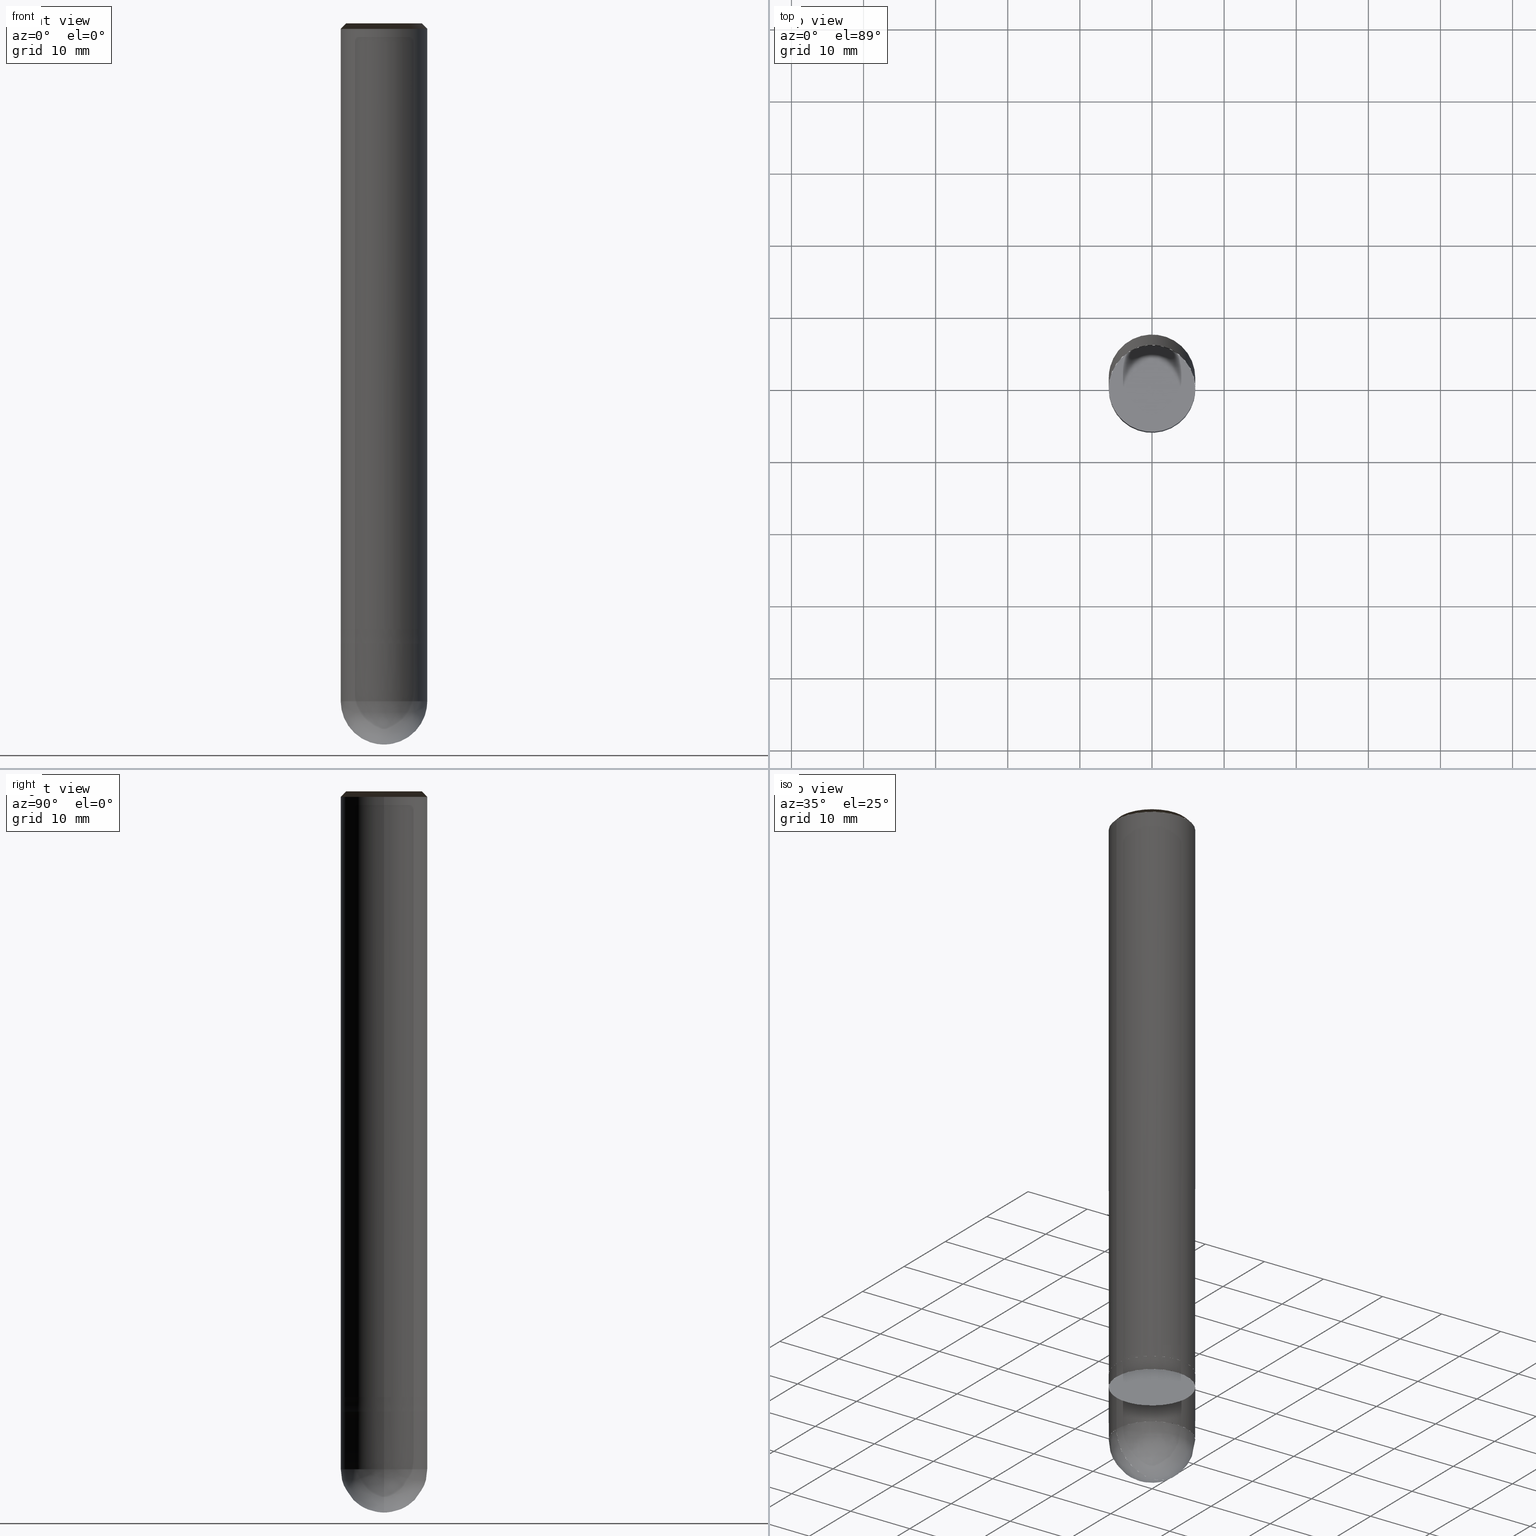
[diagram: canonical four-view strip — front | top / right | iso, engineering-drawing reading convention]
A machine part, canonical four-view strip (front | top / right | iso — engineering-drawing reading convention). The complete STEP part file that produces these views, byte-faithful:
ISO-10303-21;
HEADER;
/* Generated by ISBE GmbH (www.isbe.de) */
/* OPTION: using custom schema-name function */

FILE_DESCRIPTION(
/* description */ (''),
/* implementation_level */ '2;1');

FILE_NAME(
/*name*/ 'Drawing No  1301200   Issue  1',
/*time_stamp*/'2021-9-9T8:36:19',
/*author*/ ('ISBE GmbH'),
/*organization*/ ('ISBE GmbH'),
/*preprocessor_version*/ 'STEP IO v1.0',
/*originating_system*/ '',
/*authorisation*/ '');

FILE_SCHEMA (('AUTOMOTIVE_DESIGN'));
ENDSEC;

DATA;
#10=SHAPE_DEFINITION_REPRESENTATION(#11,#57);
#11=PRODUCT_DEFINITION_SHAPE('Document','',#13);
#12=PRODUCT_DEFINITION_CONTEXT('3D Mechanical Parts',#17,'design');
#13=PRODUCT_DEFINITION('A','First version',#14,#12);
#14=PRODUCT_DEFINITION_FORMATION_WITH_SPECIFIED_SOURCE('A','First version',#19,.MADE.);
#15=PRODUCT_RELATED_PRODUCT_CATEGORY('tool','tool',(#19));
#16=APPLICATION_PROTOCOL_DEFINITION('Draft International Standard', 'automotive_design',1999,#17);
#17=APPLICATION_CONTEXT('data for automotive mechanical design processes');
#18=PRODUCT_CONTEXT('3D Mechanical Parts',#17,'mechanical');
#19=PRODUCT('Document','Document','ISBE converted to STEP',(#18));
#20=(
LENGTH_UNIT()
NAMED_UNIT(*)
SI_UNIT(.MILLI.,.METRE.)
);
#21=(
NAMED_UNIT(*)
PLANE_ANGLE_UNIT()
SI_UNIT($,.RADIAN.)
);
#22=DIMENSIONAL_EXPONENTS(0.,0.,0.,0.,0.,0.,0.);
#23=PLANE_ANGLE_MEASURE_WITH_UNIT(PLANE_ANGLE_MEASURE(0.01745329252),#21);
#24=(
CONVERSION_BASED_UNIT('DEGREES',#23)
NAMED_UNIT(#22)
PLANE_ANGLE_UNIT()
);
#25=(
NAMED_UNIT(*)
SI_UNIT($,.STERADIAN.)
SOLID_ANGLE_UNIT()
);
#26=UNCERTAINTY_MEASURE_WITH_UNIT(LENGTH_MEASURE(0.001),#20, 'DISTANCE_ACCURACY_VALUE', 'Maximum model space distance between geometric entities at asserted connectivities');
#27=(
GEOMETRIC_REPRESENTATION_CONTEXT(3)
GLOBAL_UNCERTAINTY_ASSIGNED_CONTEXT((#26))
GLOBAL_UNIT_ASSIGNED_CONTEXT((#25,#24,#20))
REPRESENTATION_CONTEXT('ID1','3D')
);
#28=CARTESIAN_POINT('',(0.0,0.0,0.0));
#29=DIRECTION('',(1.0,0.0,0.0));
#30=DIRECTION('',(0.0,0.0,1.0));
#31=AXIS2_PLACEMENT_3D('',#28,#30,#29);
#32=CARTESIAN_POINT('',(0.0,0.0,0.0));
#33=DIRECTION('',(1.0,0.0,0.0));
#34=DIRECTION('',(0.0,0.0,1.0));
#35=AXIS2_PLACEMENT_3D('',#32,#34,#33);
#36=CARTESIAN_POINT('',(0.0,0.0,0.0));
#37=DIRECTION('',(1.0,0.0,0.0));
#38=DIRECTION('',(0.0,0.0,1.0));
#39=AXIS2_PLACEMENT_3D('',#36,#38,#37);
#40=CARTESIAN_POINT('',(0.0,0.0,0.0));
#41=DIRECTION('',(0.0,0.0,1.0));
#42=DIRECTION('',(1.0,0.0,0.0));
#43=AXIS2_PLACEMENT_3D('MCS',#40,#42,#41);
#44=CARTESIAN_POINT('',(0.0,0.0,84.0));
#45=DIRECTION('',(0.0,0.0,1.0));
#46=DIRECTION('',(1.0,0.0,0.0));
#47=AXIS2_PLACEMENT_3D('PCS',#44,#46,#45);
#48=CARTESIAN_POINT('',(0.0,0.0,-16.0));
#49=DIRECTION('',(0.0,0.0,1.0));
#50=DIRECTION('',(1.0,0.0,0.0));
#51=AXIS2_PLACEMENT_3D('CIP',#48,#50,#49);
#52=CARTESIAN_POINT('',(0.0,-6.0,-16.0));
#53=DIRECTION('',(0.0,0.0,1.0));
#54=DIRECTION('',(1.0,0.0,0.0));
#55=AXIS2_PLACEMENT_3D('CRP',#52,#54,#53);
#57=SHAPE_REPRESENTATION('Document',(#31,#35,#39,#43,#47,#51,#55),#27);
#58=DIRECTION('',(1.0,0.0,0.0));
#59=DIRECTION('',(0.0,0.0,1.0));
#60=CARTESIAN_POINT('',(-0.059996944139,-0.000605552642,-15.999038205596));
#61=CARTESIAN_POINT('',(-0.058115524625,-0.183318074099,-15.996917297204));
#62=CARTESIAN_POINT('',(-0.055748747635,-0.380357500674,-15.987672356502));
#63=CARTESIAN_POINT('',(-0.052736526354,-0.573719472346,-15.972274677695));
#64=CARTESIAN_POINT('',(-0.048718910756,-0.765714655098,-15.950740082939));
#65=CARTESIAN_POINT('',(-0.043361532276,-0.956617128911,-15.923090700487));
#66=CARTESIAN_POINT('',(-0.036340212354,-1.146375922958,-15.889354941946));
#67=CARTESIAN_POINT('',(-0.027340378313,-1.334845639567,-15.849567473091));
#68=CARTESIAN_POINT('',(-0.016058204912,-1.521842784204,-15.803769178234));
#69=CARTESIAN_POINT('',(-0.002202112718,-1.707164099507,-15.75200711822));
#70=CARTESIAN_POINT('',(0.014505649784,-1.890593661393,-15.694334482064));
#71=CARTESIAN_POINT('',(0.034327418646,-2.071905977038,-15.630810532299));
#72=CARTESIAN_POINT('',(0.05750855197,-2.250867491589,-15.561500544076));
#73=CARTESIAN_POINT('',(0.084275908777,-2.42723743101,-15.486475738095));
#74=CARTESIAN_POINT('',(0.11483638083,-2.60076838111,-15.405813207415));
#75=CARTESIAN_POINT('',(0.149375487487,-2.771206791551,-15.319595838238));
#76=CARTESIAN_POINT('',(0.18805604323,-2.938293500489,-15.22791222474));
#77=CARTESIAN_POINT('',(0.231016907556,-3.101764330843,-15.130856578032));
#78=CARTESIAN_POINT('',(0.278371827082,-3.261350786052,-15.028528629351));
#79=CARTESIAN_POINT('',(0.330208379857,-3.41678086015,-14.921033527582));
#80=CARTESIAN_POINT('',(0.386587031985,-3.56777996902,-14.808481731208));
#81=CARTESIAN_POINT('',(0.447540316664,-3.714072004384,-14.690988894808));
#82=CARTESIAN_POINT('',(0.513072145583,-3.855380508176,-14.568675750215));
#83=CARTESIAN_POINT('',(0.583157262367,-3.991429961932,-14.441667982452));
#84=CARTESIAN_POINT('',(0.657740847263,-4.121947183256,-14.310096100586));
#85=CARTESIAN_POINT('',(0.736738281702,-4.246662819269,-14.174095303621));
#86=CARTESIAN_POINT('',(0.820035080515,-4.365312924987,-14.033805341568));
#87=CARTESIAN_POINT('',(0.907486998663,-4.477640612852,-13.889370371847));
#88=CARTESIAN_POINT('',(0.998920318168,-4.583397758123,-13.740938811152));
#89=CARTESIAN_POINT('',(1.094132319653,-4.682346743509,-13.588663182947));
#90=CARTESIAN_POINT('',(1.192891941426,-4.774262225273,-13.432699960733));
#91=CARTESIAN_POINT('',(1.294940627444,-4.85893290215,-13.273209407263));
#92=CARTESIAN_POINT('',(1.399993363811,-4.936163267723,-13.110355409863));
#93=CARTESIAN_POINT('',(1.507739901594,-5.005775326434,-12.944305312024));
#94=CARTESIAN_POINT('',(1.617846161903,-5.067610253227,-12.775229741445));
#95=CARTESIAN_POINT('',(1.729955817221,-5.121529976864,-12.603302434705));
#96=CARTESIAN_POINT('',(1.843692041009,-5.167418667248,-12.428700058734));
#97=CARTESIAN_POINT('',(1.958659415677,-5.205184107708,-12.251602029276));
#98=CARTESIAN_POINT('',(2.074445987115,-5.234758934009,-12.072190326528));
#99=CARTESIAN_POINT('',(2.190625452144,-5.256101722954,-11.890649308142));
#100=CARTESIAN_POINT('',(2.306759463527,-5.269197914814,-11.707165519786));
#101=CARTESIAN_POINT('',(2.422400035625,-5.274060555362,-11.521927503457));
#102=CARTESIAN_POINT('',(2.537092032348,-5.270730845114,-11.335125603738));
#103=CARTESIAN_POINT('',(2.650375717837,-5.259278485356,-11.146951772208));
#104=CARTESIAN_POINT('',(2.761789349354,-5.239801812663,-10.9575993702));
#105=CARTESIAN_POINT('',(2.870871791052,-5.212427715954,-10.767262970107));
#106=CARTESIAN_POINT('',(2.977165126855,-5.177311332466,-10.576138155446));
#107=CARTESIAN_POINT('',(3.080217250411,-5.134635521543,-10.384421319884));
#108=CARTESIAN_POINT('',(3.179584410182,-5.084610117604,-10.19230946543));
#109=CARTESIAN_POINT('',(3.274833688039,-5.02747096617,-10.0));
#110=CARTESIAN_POINT('',(3.322582222361,-4.996043171916,-9.90099009901));
#111=CARTESIAN_POINT('',(3.370029174313,-4.964161899483,-9.80198019802));
#112=CARTESIAN_POINT('',(3.417170237257,-4.931830042652,-9.70297029703));
#113=CARTESIAN_POINT('',(3.464001132316,-4.899050536105,-9.60396039604));
#114=CARTESIAN_POINT('',(3.51051760877,-4.865826355155,-9.50495049505));
#115=CARTESIAN_POINT('',(3.556715444435,-4.832160515475,-9.405940594059));
#116=CARTESIAN_POINT('',(3.602590446052,-4.798056072829,-9.306930693069));
#117=CARTESIAN_POINT('',(3.648138449663,-4.763516122791,-9.207920792079));
#118=CARTESIAN_POINT('',(3.69335532099,-4.728543800465,-9.108910891089));
#119=CARTESIAN_POINT('',(3.738236955813,-4.693142280199,-9.009900990099));
#120=CARTESIAN_POINT('',(3.78277928034,-4.6573147753,-8.910891089109));
#121=CARTESIAN_POINT('',(3.826978251576,-4.62106453774,-8.811881188119));
#122=CARTESIAN_POINT('',(3.870829857694,-4.584394857861,-8.712871287129));
#123=CARTESIAN_POINT('',(3.914330118394,-4.547309064077,-8.613861386139));
#124=CARTESIAN_POINT('',(3.957475085266,-4.509810522571,-8.514851485149));
#125=CARTESIAN_POINT('',(4.000260842154,-4.471902636992,-8.415841584158));
#126=CARTESIAN_POINT('',(4.0426835055,-4.433588848141,-8.316831683168));
#127=CARTESIAN_POINT('',(4.084739224708,-4.394872633664,-8.217821782178));
#128=CARTESIAN_POINT('',(4.126424182487,-4.355757507734,-8.118811881188));
#129=CARTESIAN_POINT('',(4.167734595199,-4.316247020733,-8.019801980198));
#130=CARTESIAN_POINT('',(4.208666713202,-4.276344758925,-7.920792079208));
#131=CARTESIAN_POINT('',(4.249216821191,-4.23605434414,-7.821782178218));
#132=CARTESIAN_POINT('',(4.289381238536,-4.195379433435,-7.722772277228));
#133=CARTESIAN_POINT('',(4.329156319615,-4.15432371877,-7.623762376238));
#134=CARTESIAN_POINT('',(4.368538454145,-4.112890926667,-7.524752475248));
#135=CARTESIAN_POINT('',(4.407524067508,-4.071084817876,-7.425742574257));
#136=CARTESIAN_POINT('',(4.446109621079,-4.028909187032,-7.326732673267));
#137=CARTESIAN_POINT('',(4.484291612546,-3.986367862309,-7.227722772277));
#138=CARTESIAN_POINT('',(4.522066576225,-3.943464705077,-7.128712871287));
#139=CARTESIAN_POINT('',(4.55943108338,-3.900203609545,-7.029702970297));
#140=CARTESIAN_POINT('',(4.596381742528,-3.856588502414,-6.930693069307));
#141=CARTESIAN_POINT('',(4.632915199752,-3.812623342517,-6.831683168317));
#142=CARTESIAN_POINT('',(4.669028139003,-3.768312120459,-6.732673267327));
#143=CARTESIAN_POINT('',(4.7047172824,-3.723658858259,-6.633663366337));
#144=CARTESIAN_POINT('',(4.73997939053,-3.678667608979,-6.534653465347));
#145=CARTESIAN_POINT('',(4.774811262741,-3.633342456362,-6.435643564356));
#146=CARTESIAN_POINT('',(4.809209737432,-3.587687514456,-6.336633663366));
#147=CARTESIAN_POINT('',(4.843171692342,-3.541706927245,-6.237623762376));
#148=CARTESIAN_POINT('',(4.876694044829,-3.495404868271,-6.138613861386));
#149=CARTESIAN_POINT('',(4.909773752154,-3.448785540253,-6.039603960396));
#150=CARTESIAN_POINT('',(4.942407811756,-3.401853174711,-5.940594059406));
#151=CARTESIAN_POINT('',(4.974593261525,-3.354612031576,-5.841584158416));
#152=CARTESIAN_POINT('',(5.006327180068,-3.307066398806,-5.742574257426));
#153=CARTESIAN_POINT('',(5.037606686978,-3.259220592,-5.643564356436));
#154=CARTESIAN_POINT('',(5.068428943094,-3.211078953998,-5.544554455446));
#155=CARTESIAN_POINT('',(5.098791150757,-3.162645854497,-5.445544554455));
#156=CARTESIAN_POINT('',(5.128690554067,-3.113925689644,-5.346534653465));
#157=CARTESIAN_POINT('',(5.15812443913,-3.064922881647,-5.247524752475));
#158=CARTESIAN_POINT('',(5.187090134309,-3.015641878367,-5.148514851485));
#159=CARTESIAN_POINT('',(5.215585010459,-2.966087152914,-5.049504950495));
#160=CARTESIAN_POINT('',(5.243606481173,-2.916263203245,-4.950495049505));
#161=CARTESIAN_POINT('',(5.271152003013,-2.866174551756,-4.851485148515));
#162=CARTESIAN_POINT('',(5.298219075742,-2.815825744864,-4.752475247525));
#163=CARTESIAN_POINT('',(5.324805242551,-2.765221352605,-4.653465346535));
#164=CARTESIAN_POINT('',(5.35090809028,-2.71436596821,-4.554455445545));
#165=CARTESIAN_POINT('',(5.37652524964,-2.663264207694,-4.455445544554));
#166=CARTESIAN_POINT('',(5.401654395427,-2.611920709434,-4.356435643564));
#167=CARTESIAN_POINT('',(5.426293246731,-2.560340133749,-4.257425742574));
#168=CARTESIAN_POINT('',(5.450439567146,-2.508527162478,-4.158415841584));
#169=CARTESIAN_POINT('',(5.474091164972,-2.456486498553,-4.059405940594));
#170=CARTESIAN_POINT('',(5.497245893414,-2.404222865572,-3.960396039604));
#171=CARTESIAN_POINT('',(5.519901650775,-2.351741007374,-3.861386138614));
#172=CARTESIAN_POINT('',(5.54205638065,-2.299045687604,-3.762376237624));
#173=CARTESIAN_POINT('',(5.563708072111,-2.246141689282,-3.663366336634));
#174=CARTESIAN_POINT('',(5.584854759886,-2.193033814371,-3.564356435644));
#175=CARTESIAN_POINT('',(5.605494524547,-2.139726883337,-3.465346534653));
#176=CARTESIAN_POINT('',(5.625625492673,-2.086225734715,-3.366336633663));
#177=CARTESIAN_POINT('',(5.645245837028,-2.03253522467,-3.267326732673));
#178=CARTESIAN_POINT('',(5.664353776722,-1.978660226552,-3.168316831683));
#179=CARTESIAN_POINT('',(5.682947577376,-1.924605630459,-3.069306930693));
#180=CARTESIAN_POINT('',(5.701025551279,-1.87037634279,-2.970297029703));
#181=CARTESIAN_POINT('',(5.718586057537,-1.815977285799,-2.871287128713));
#182=CARTESIAN_POINT('',(5.73562750223,-1.761413397152,-2.772277227723));
#183=CARTESIAN_POINT('',(5.752148338547,-1.706689629474,-2.673267326733));
#184=CARTESIAN_POINT('',(5.768147066934,-1.651810949902,-2.574257425743));
#185=CARTESIAN_POINT('',(5.783622235228,-1.596782339636,-2.475247524752));
#186=CARTESIAN_POINT('',(5.798572438787,-1.541608793483,-2.376237623762));
#187=CARTESIAN_POINT('',(5.812996320617,-1.486295319406,-2.277227722772));
#188=CARTESIAN_POINT('',(5.826892571501,-1.430846938069,-2.178217821782));
#189=CARTESIAN_POINT('',(5.840259930111,-1.375268682381,-2.079207920792));
#190=CARTESIAN_POINT('',(0.059996944139,0.000605552642,-15.999038205596));
#191=CARTESIAN_POINT('',(0.058115524625,0.183318074099,-15.996917297204));
#192=CARTESIAN_POINT('',(0.055748747635,0.380357500674,-15.987672356502));
#193=CARTESIAN_POINT('',(0.052736526354,0.573719472346,-15.972274677695));
#194=CARTESIAN_POINT('',(0.048718910756,0.765714655098,-15.950740082939));
#195=CARTESIAN_POINT('',(0.043361532276,0.956617128911,-15.923090700487));
#196=CARTESIAN_POINT('',(0.036340212354,1.146375922958,-15.889354941946));
#197=CARTESIAN_POINT('',(0.027340378313,1.334845639567,-15.849567473091));
#198=CARTESIAN_POINT('',(0.016058204912,1.521842784204,-15.803769178234));
#199=CARTESIAN_POINT('',(0.002202112718,1.707164099507,-15.75200711822));
#200=CARTESIAN_POINT('',(-0.014505649784,1.890593661393,-15.694334482064));
#201=CARTESIAN_POINT('',(-0.034327418646,2.071905977038,-15.630810532299));
#202=CARTESIAN_POINT('',(-0.05750855197,2.250867491589,-15.561500544076));
#203=CARTESIAN_POINT('',(-0.084275908777,2.42723743101,-15.486475738095));
#204=CARTESIAN_POINT('',(-0.11483638083,2.60076838111,-15.405813207415));
#205=CARTESIAN_POINT('',(-0.149375487487,2.771206791551,-15.319595838238));
#206=CARTESIAN_POINT('',(-0.18805604323,2.938293500489,-15.22791222474));
#207=CARTESIAN_POINT('',(-0.231016907556,3.101764330843,-15.130856578032));
#208=CARTESIAN_POINT('',(-0.278371827082,3.261350786052,-15.028528629351));
#209=CARTESIAN_POINT('',(-0.330208379857,3.41678086015,-14.921033527582));
#210=CARTESIAN_POINT('',(-0.386587031985,3.56777996902,-14.808481731208));
#211=CARTESIAN_POINT('',(-0.447540316664,3.714072004384,-14.690988894808));
#212=CARTESIAN_POINT('',(-0.513072145583,3.855380508176,-14.568675750215));
#213=CARTESIAN_POINT('',(-0.583157262367,3.991429961932,-14.441667982452));
#214=CARTESIAN_POINT('',(-0.657740847263,4.121947183256,-14.310096100586));
#215=CARTESIAN_POINT('',(-0.736738281702,4.246662819269,-14.174095303621));
#216=CARTESIAN_POINT('',(-0.820035080515,4.365312924987,-14.033805341568));
#217=CARTESIAN_POINT('',(-0.907486998663,4.477640612852,-13.889370371847));
#218=CARTESIAN_POINT('',(-0.998920318168,4.583397758123,-13.740938811152));
#219=CARTESIAN_POINT('',(-1.094132319653,4.682346743509,-13.588663182947));
#220=CARTESIAN_POINT('',(-1.192891941426,4.774262225273,-13.432699960733));
#221=CARTESIAN_POINT('',(-1.294940627444,4.85893290215,-13.273209407263));
#222=CARTESIAN_POINT('',(-1.399993363811,4.936163267723,-13.110355409863));
#223=CARTESIAN_POINT('',(-1.507739901594,5.005775326434,-12.944305312024));
#224=CARTESIAN_POINT('',(-1.617846161903,5.067610253227,-12.775229741445));
#225=CARTESIAN_POINT('',(-1.729955817221,5.121529976864,-12.603302434705));
#226=CARTESIAN_POINT('',(-1.843692041009,5.167418667248,-12.428700058734));
#227=CARTESIAN_POINT('',(-1.958659415677,5.205184107708,-12.251602029276));
#228=CARTESIAN_POINT('',(-2.074445987115,5.234758934009,-12.072190326528));
#229=CARTESIAN_POINT('',(-2.190625452144,5.256101722954,-11.890649308142));
#230=CARTESIAN_POINT('',(-2.306759463527,5.269197914814,-11.707165519786));
#231=CARTESIAN_POINT('',(-2.422400035625,5.274060555362,-11.521927503457));
#232=CARTESIAN_POINT('',(-2.537092032348,5.270730845114,-11.335125603738));
#233=CARTESIAN_POINT('',(-2.650375717837,5.259278485356,-11.146951772208));
#234=CARTESIAN_POINT('',(-2.761789349354,5.239801812663,-10.9575993702));
#235=CARTESIAN_POINT('',(-2.870871791052,5.212427715954,-10.767262970107));
#236=CARTESIAN_POINT('',(-2.977165126855,5.177311332466,-10.576138155446));
#237=CARTESIAN_POINT('',(-3.080217250411,5.134635521543,-10.384421319884));
#238=CARTESIAN_POINT('',(-3.179584410182,5.084610117604,-10.19230946543));
#239=CARTESIAN_POINT('',(-3.274833688039,5.02747096617,-10.0));
#240=CARTESIAN_POINT('',(-3.322582222361,4.996043171916,-9.90099009901));
#241=CARTESIAN_POINT('',(-3.370029174313,4.964161899483,-9.80198019802));
#242=CARTESIAN_POINT('',(-3.417170237257,4.931830042652,-9.70297029703));
#243=CARTESIAN_POINT('',(-3.464001132316,4.899050536105,-9.60396039604));
#244=CARTESIAN_POINT('',(-3.51051760877,4.865826355155,-9.50495049505));
#245=CARTESIAN_POINT('',(-3.556715444435,4.832160515475,-9.405940594059));
#246=CARTESIAN_POINT('',(-3.602590446052,4.798056072829,-9.306930693069));
#247=CARTESIAN_POINT('',(-3.648138449663,4.763516122791,-9.207920792079));
#248=CARTESIAN_POINT('',(-3.69335532099,4.728543800465,-9.108910891089));
#249=CARTESIAN_POINT('',(-3.738236955813,4.693142280199,-9.009900990099));
#250=CARTESIAN_POINT('',(-3.78277928034,4.6573147753,-8.910891089109));
#251=CARTESIAN_POINT('',(-3.826978251576,4.62106453774,-8.811881188119));
#252=CARTESIAN_POINT('',(-3.870829857694,4.584394857861,-8.712871287129));
#253=CARTESIAN_POINT('',(-3.914330118394,4.547309064077,-8.613861386139));
#254=CARTESIAN_POINT('',(-3.957475085266,4.509810522571,-8.514851485149));
#255=CARTESIAN_POINT('',(-4.000260842154,4.471902636992,-8.415841584158));
#256=CARTESIAN_POINT('',(-4.0426835055,4.433588848141,-8.316831683168));
#257=CARTESIAN_POINT('',(-4.084739224708,4.394872633664,-8.217821782178));
#258=CARTESIAN_POINT('',(-4.126424182487,4.355757507734,-8.118811881188));
#259=CARTESIAN_POINT('',(-4.167734595199,4.316247020733,-8.019801980198));
#260=CARTESIAN_POINT('',(-4.208666713202,4.276344758925,-7.920792079208));
#261=CARTESIAN_POINT('',(-4.249216821191,4.23605434414,-7.821782178218));
#262=CARTESIAN_POINT('',(-4.289381238536,4.195379433435,-7.722772277228));
#263=CARTESIAN_POINT('',(-4.329156319615,4.15432371877,-7.623762376238));
#264=CARTESIAN_POINT('',(-4.368538454145,4.112890926667,-7.524752475248));
#265=CARTESIAN_POINT('',(-4.407524067508,4.071084817876,-7.425742574257));
#266=CARTESIAN_POINT('',(-4.446109621079,4.028909187032,-7.326732673267));
#267=CARTESIAN_POINT('',(-4.484291612546,3.986367862309,-7.227722772277));
#268=CARTESIAN_POINT('',(-4.522066576225,3.943464705077,-7.128712871287));
#269=CARTESIAN_POINT('',(-4.55943108338,3.900203609545,-7.029702970297));
#270=CARTESIAN_POINT('',(-4.596381742528,3.856588502414,-6.930693069307));
#271=CARTESIAN_POINT('',(-4.632915199752,3.812623342517,-6.831683168317));
#272=CARTESIAN_POINT('',(-4.669028139003,3.768312120459,-6.732673267327));
#273=CARTESIAN_POINT('',(-4.7047172824,3.723658858259,-6.633663366337));
#274=CARTESIAN_POINT('',(-4.73997939053,3.678667608979,-6.534653465347));
#275=CARTESIAN_POINT('',(-4.774811262741,3.633342456362,-6.435643564356));
#276=CARTESIAN_POINT('',(-4.809209737432,3.587687514456,-6.336633663366));
#277=CARTESIAN_POINT('',(-4.843171692342,3.541706927245,-6.237623762376));
#278=CARTESIAN_POINT('',(-4.876694044829,3.495404868271,-6.138613861386));
#279=CARTESIAN_POINT('',(-4.909773752154,3.448785540253,-6.039603960396));
#280=CARTESIAN_POINT('',(-4.942407811756,3.401853174711,-5.940594059406));
#281=CARTESIAN_POINT('',(-4.974593261525,3.354612031576,-5.841584158416));
#282=CARTESIAN_POINT('',(-5.006327180068,3.307066398807,-5.742574257426));
#283=CARTESIAN_POINT('',(-5.037606686978,3.259220592,-5.643564356436));
#284=CARTESIAN_POINT('',(-5.068428943094,3.211078953998,-5.544554455446));
#285=CARTESIAN_POINT('',(-5.098791150757,3.162645854497,-5.445544554455));
#286=CARTESIAN_POINT('',(-5.128690554067,3.113925689644,-5.346534653465));
#287=CARTESIAN_POINT('',(-5.15812443913,3.064922881647,-5.247524752475));
#288=CARTESIAN_POINT('',(-5.187090134309,3.015641878367,-5.148514851485));
#289=CARTESIAN_POINT('',(-5.215585010459,2.966087152914,-5.049504950495));
#290=CARTESIAN_POINT('',(-5.243606481173,2.916263203245,-4.950495049505));
#291=CARTESIAN_POINT('',(-5.271152003013,2.866174551756,-4.851485148515));
#292=CARTESIAN_POINT('',(-5.298219075742,2.815825744864,-4.752475247525));
#293=CARTESIAN_POINT('',(-5.324805242551,2.765221352605,-4.653465346535));
#294=CARTESIAN_POINT('',(-5.35090809028,2.71436596821,-4.554455445545));
#295=CARTESIAN_POINT('',(-5.37652524964,2.663264207694,-4.455445544554));
#296=CARTESIAN_POINT('',(-5.401654395427,2.611920709434,-4.356435643564));
#297=CARTESIAN_POINT('',(-5.426293246731,2.560340133749,-4.257425742574));
#298=CARTESIAN_POINT('',(-5.450439567146,2.508527162478,-4.158415841584));
#299=CARTESIAN_POINT('',(-5.474091164972,2.456486498553,-4.059405940594));
#300=CARTESIAN_POINT('',(-5.497245893414,2.404222865572,-3.960396039604));
#301=CARTESIAN_POINT('',(-5.519901650775,2.351741007375,-3.861386138614));
#302=CARTESIAN_POINT('',(-5.54205638065,2.299045687604,-3.762376237624));
#303=CARTESIAN_POINT('',(-5.563708072111,2.246141689282,-3.663366336634));
#304=CARTESIAN_POINT('',(-5.584854759886,2.193033814371,-3.564356435644));
#305=CARTESIAN_POINT('',(-5.605494524547,2.139726883337,-3.465346534653));
#306=CARTESIAN_POINT('',(-5.625625492673,2.086225734715,-3.366336633663));
#307=CARTESIAN_POINT('',(-5.645245837028,2.03253522467,-3.267326732673));
#308=CARTESIAN_POINT('',(-5.664353776722,1.978660226552,-3.168316831683));
#309=CARTESIAN_POINT('',(-5.682947577376,1.924605630459,-3.069306930693));
#310=CARTESIAN_POINT('',(-5.701025551279,1.87037634279,-2.970297029703));
#311=CARTESIAN_POINT('',(-5.718586057537,1.815977285799,-2.871287128713));
#312=CARTESIAN_POINT('',(-5.73562750223,1.761413397152,-2.772277227723));
#313=CARTESIAN_POINT('',(-5.752148338547,1.706689629474,-2.673267326733));
#314=CARTESIAN_POINT('',(-5.768147066934,1.651810949902,-2.574257425743));
#315=CARTESIAN_POINT('',(-5.783622235228,1.596782339636,-2.475247524752));
#316=CARTESIAN_POINT('',(-5.798572438787,1.541608793483,-2.376237623762));
#317=CARTESIAN_POINT('',(-5.812996320617,1.486295319407,-2.277227722772));
#318=CARTESIAN_POINT('',(-5.826892571501,1.43084693807,-2.178217821782));
#319=CARTESIAN_POINT('',(-5.840259930111,1.375268682381,-2.079207920792));
#320=CARTESIAN_POINT('',(0.0,0.0,-16.0));
#321=CARTESIAN_POINT('',(6.0,0.0,-16.0));
#322=CARTESIAN_POINT('',(6.0,6.0,-16.0));
#323=CARTESIAN_POINT('',(0.0,6.0,-16.0));
#324=CARTESIAN_POINT('',(-6.0,6.0,-16.0));
#325=CARTESIAN_POINT('',(-6.0,0.0,-16.0));
#326=CARTESIAN_POINT('',(6.0,0.0,-10.0));
#327=CARTESIAN_POINT('',(6.0,6.0,-10.0));
#328=CARTESIAN_POINT('',(0.0,6.0,-10.0));
#329=CARTESIAN_POINT('',(-6.0,6.0,-10.0));
#330=CARTESIAN_POINT('',(-6.0,0.0,-10.0));
#331=CARTESIAN_POINT('',(6.0,0.0,-2.0));
#332=CARTESIAN_POINT('',(6.0,6.0,-2.0));
#333=CARTESIAN_POINT('',(0.0,6.0,-2.0));
#334=CARTESIAN_POINT('',(-6.0,6.0,-2.0));
#335=CARTESIAN_POINT('',(-6.0,0.0,-2.0));
#336=CARTESIAN_POINT('',(0.0,0.0,-2.0));
#337=CARTESIAN_POINT('',(-6.0,-6.0,-16.0));
#338=CARTESIAN_POINT('',(0.0,-6.0,-16.0));
#339=CARTESIAN_POINT('',(6.0,-6.0,-16.0));
#340=CARTESIAN_POINT('',(-6.0,-6.0,-10.0));
#341=CARTESIAN_POINT('',(0.0,-6.0,-10.0));
#342=CARTESIAN_POINT('',(6.0,-6.0,-10.0));
#343=CARTESIAN_POINT('',(-6.0,-6.0,-2.0));
#344=CARTESIAN_POINT('',(0.0,-6.0,-2.0));
#345=CARTESIAN_POINT('',(6.0,-6.0,-2.0));
#346=CARTESIAN_POINT('',(6.0,0.0,0.0));
#347=CARTESIAN_POINT('',(6.0,6.0,0.0));
#348=CARTESIAN_POINT('',(0.0,6.0,0.0));
#349=CARTESIAN_POINT('',(-6.0,6.0,0.0));
#350=CARTESIAN_POINT('',(-6.0,0.0,0.0));
#351=CARTESIAN_POINT('',(6.0,0.0,83.25));
#352=CARTESIAN_POINT('',(6.0,6.0,83.25));
#353=CARTESIAN_POINT('',(0.0,6.0,83.25));
#354=CARTESIAN_POINT('',(-6.0,6.0,83.25));
#355=CARTESIAN_POINT('',(-6.0,0.0,83.25));
#356=CARTESIAN_POINT('',(5.25,0.0,84.0));
#357=CARTESIAN_POINT('',(5.25,5.25,84.0));
#358=CARTESIAN_POINT('',(0.0,5.25,84.0));
#359=CARTESIAN_POINT('',(-5.25,5.25,84.0));
#360=CARTESIAN_POINT('',(-5.25,0.0,84.0));
#361=CARTESIAN_POINT('',(0.0,0.0,84.0));
#362=CARTESIAN_POINT('',(-6.0,-6.0,0.0));
#363=CARTESIAN_POINT('',(0.0,-6.0,0.0));
#364=CARTESIAN_POINT('',(6.0,-6.0,0.0));
#365=CARTESIAN_POINT('',(-6.0,-6.0,83.25));
#366=CARTESIAN_POINT('',(0.0,-6.0,83.25));
#367=CARTESIAN_POINT('',(6.0,-6.0,83.25));
#368=CARTESIAN_POINT('',(-5.25,-5.25,84.0));
#369=CARTESIAN_POINT('',(0.0,-5.25,84.0));
#370=CARTESIAN_POINT('',(5.25,-5.25,84.0));
#371=(
BOUNDED_CURVE()
B_SPLINE_CURVE(1,(#60,#61,#62,#63,#64,#65,#66,#67,#68,#69,#70,#71,#72,#73,#74,#75,#76,#77,#78,#79,#80,#81,#82,#83,#84,#85,#86,#87,#88,#89,#90,#91,#92,#93,#94,#95,#96,#97,#98,#99,#100,#101,#102,#103,#104,#105,#106,#107,#108,#109,#110,#111,#112,#113,#114,#115,#116,#117,#118,#119,#120,#121,#122,#123,#124,#125,#126,#127,#128,#129,#130,#131,#132,#133,#134,#135,#136,#137,#138,#139,#140,#141,#142,#143,#144,#145,#146,#147,#148,#149,#150,#151,#152,#153,#154,#155,#156,#157,#158,#159,#160,#161,#162,#163,#164,#165,#166,#167,#168,#169,#170,#171,#172,#173,#174,#175,#176,#177,#178,#179,#180,#181,#182,#183,#184,#185,#186,#187,#188,#189),.UNSPECIFIED.,.F.,.F.)
B_SPLINE_CURVE_WITH_KNOTS((2,1,1,1,1,1,1,1,1,1,1,1,1,1,1,1,1,1,1,1,1,1,1,1,1,1,1,1,1,1,1,1,1,1,1,1,1,1,1,1,1,1,1,1,1,1,1,1,1,1,1,1,1,1,1,1,1,1,1,1,1,1,1,1,1,1,1,1,1,1,1,1,1,1,1,1,1,1,1,1,1,1,1,1,1,1,1,1,1,1,1,1,1,1,1,1,1,1,1,1,1,1,1,1,1,1,1,1,1,1,1,1,1,1,1,1,1,1,1,1,1,1,1,1,1,1,1,1,1,2),
(0.0,0.009545415024,0.019850133406,0.029983885341,0.040078115212,0.050158131769,0.060232577946,0.0703055443,0.080379571071,0.090456656569,0.100538668267,0.110627533642,0.120725335527,0.130834359644,0.140957114645,0.151096334166,0.161254965786,0.171436149669,0.181643188746,0.191879511832,0.202148630904,0.212454093727,0.222799432998,0.233188113178,0.243623476222,0.254108687351,0.264646682023,0.27524011514,0.285891313492,0.296602232272,0.307374416423,0.318208967392,0.329106515773,0.340067200131,0.351090652223,0.362175988654,0.373321808939,0.384526199816,0.395786745587,0.407100544206,0.418464228749,0.429873993893,0.441325626982,0.452814543248,0.464335824724,0.475884262401,0.487454401171,0.499040587071,0.510637016398,0.522237786216,0.528209813888,0.53418184156,0.540153869233,0.546125896905,0.552097924577,0.55806995225,0.564041979922,0.570014007594,0.575986035266,0.581958062939,0.587930090611,0.593902118283,0.599874145956,0.605846173628,0.6118182013,0.617790228973,0.623762256645,0.629734284317,0.635706311989,0.641678339662,0.647650367334,0.653622395006,0.659594422679,0.665566450351,0.671538478023,0.677510505696,0.683482533368,0.68945456104,0.695426588713,0.701398616385,0.707370644057,0.713342671729,0.719314699402,0.725286727074,0.731258754746,0.737230782419,0.743202810091,0.749174837763,0.755146865436,0.761118893108,0.76709092078,0.773062948452,0.779034976125,0.785007003797,0.790979031469,0.796951059142,0.802923086814,0.808895114486,0.814867142159,0.820839169831,0.826811197503,0.832783225175,0.838755252848,0.84472728052,0.850699308192,0.856671335865,0.862643363537,0.868615391209,0.874587418882,0.880559446554,0.886531474226,0.892503501899,0.898475529571,0.904447557243,0.910419584915,0.916391612588,0.92236364026,0.928335667932,0.934307695605,0.940279723277,0.946251750949,0.952223778622,0.958195806294,0.964167833966,0.970139861638,0.976111889311,0.982083916983,0.988055944655,0.994027972328,1.0),.UNSPECIFIED.)
CURVE()
GEOMETRIC_REPRESENTATION_ITEM()
RATIONAL_B_SPLINE_CURVE((1.0,1.0,1.0,1.0,1.0,1.0,1.0,1.0,1.0,1.0,1.0,1.0,1.0,1.0,1.0,1.0,1.0,1.0,1.0,1.0,1.0,1.0,1.0,1.0,1.0,1.0,1.0,1.0,1.0,1.0,1.0,1.0,1.0,1.0,1.0,1.0,1.0,1.0,1.0,1.0,1.0,1.0,1.0,1.0,1.0,1.0,1.0,1.0,1.0,1.0,1.0,1.0,1.0,1.0,1.0,1.0,1.0,1.0,1.0,1.0,1.0,1.0,1.0,1.0,1.0,1.0,1.0,1.0,1.0,1.0,1.0,1.0,1.0,1.0,1.0,1.0,1.0,1.0,1.0,1.0,1.0,1.0,1.0,1.0,1.0,1.0,1.0,1.0,1.0,1.0,1.0,1.0,1.0,1.0,1.0,1.0,1.0,1.0,1.0,1.0,1.0,1.0,1.0,1.0,1.0,1.0,1.0,1.0,1.0,1.0,1.0,1.0,1.0,1.0,1.0,1.0,1.0,1.0,1.0,1.0,1.0,1.0,1.0,1.0,1.0,1.0,1.0,1.0,1.0,1.0))
REPRESENTATION_ITEM('')
);
#372=(
BOUNDED_CURVE()
B_SPLINE_CURVE(1,(#190,#191,#192,#193,#194,#195,#196,#197,#198,#199,#200,#201,#202,#203,#204,#205,#206,#207,#208,#209,#210,#211,#212,#213,#214,#215,#216,#217,#218,#219,#220,#221,#222,#223,#224,#225,#226,#227,#228,#229,#230,#231,#232,#233,#234,#235,#236,#237,#238,#239,#240,#241,#242,#243,#244,#245,#246,#247,#248,#249,#250,#251,#252,#253,#254,#255,#256,#257,#258,#259,#260,#261,#262,#263,#264,#265,#266,#267,#268,#269,#270,#271,#272,#273,#274,#275,#276,#277,#278,#279,#280,#281,#282,#283,#284,#285,#286,#287,#288,#289,#290,#291,#292,#293,#294,#295,#296,#297,#298,#299,#300,#301,#302,#303,#304,#305,#306,#307,#308,#309,#310,#311,#312,#313,#314,#315,#316,#317,#318,#319),.UNSPECIFIED.,.F.,.F.)
B_SPLINE_CURVE_WITH_KNOTS((2,1,1,1,1,1,1,1,1,1,1,1,1,1,1,1,1,1,1,1,1,1,1,1,1,1,1,1,1,1,1,1,1,1,1,1,1,1,1,1,1,1,1,1,1,1,1,1,1,1,1,1,1,1,1,1,1,1,1,1,1,1,1,1,1,1,1,1,1,1,1,1,1,1,1,1,1,1,1,1,1,1,1,1,1,1,1,1,1,1,1,1,1,1,1,1,1,1,1,1,1,1,1,1,1,1,1,1,1,1,1,1,1,1,1,1,1,1,1,1,1,1,1,1,1,1,1,1,1,2),
(0.0,0.009545415024,0.019850133406,0.029983885341,0.040078115212,0.050158131769,0.060232577946,0.0703055443,0.080379571071,0.090456656569,0.100538668267,0.110627533642,0.120725335527,0.130834359644,0.140957114645,0.151096334166,0.161254965786,0.171436149669,0.181643188746,0.191879511832,0.202148630904,0.212454093727,0.222799432998,0.233188113178,0.243623476222,0.254108687351,0.264646682023,0.27524011514,0.285891313492,0.296602232272,0.307374416423,0.318208967392,0.329106515773,0.340067200131,0.351090652223,0.362175988654,0.373321808939,0.384526199816,0.395786745587,0.407100544206,0.418464228749,0.429873993893,0.441325626982,0.452814543248,0.464335824724,0.475884262401,0.487454401171,0.499040587071,0.510637016398,0.522237786216,0.528209813888,0.53418184156,0.540153869233,0.546125896905,0.552097924577,0.55806995225,0.564041979922,0.570014007594,0.575986035266,0.581958062939,0.587930090611,0.593902118283,0.599874145956,0.605846173628,0.6118182013,0.617790228973,0.623762256645,0.629734284317,0.635706311989,0.641678339662,0.647650367334,0.653622395006,0.659594422679,0.665566450351,0.671538478023,0.677510505696,0.683482533368,0.68945456104,0.695426588713,0.701398616385,0.707370644057,0.713342671729,0.719314699402,0.725286727074,0.731258754746,0.737230782419,0.743202810091,0.749174837763,0.755146865436,0.761118893108,0.76709092078,0.773062948452,0.779034976125,0.785007003797,0.790979031469,0.796951059142,0.802923086814,0.808895114486,0.814867142159,0.820839169831,0.826811197503,0.832783225175,0.838755252848,0.84472728052,0.850699308192,0.856671335865,0.862643363537,0.868615391209,0.874587418882,0.880559446554,0.886531474226,0.892503501899,0.898475529571,0.904447557243,0.910419584915,0.916391612588,0.92236364026,0.928335667932,0.934307695605,0.940279723277,0.946251750949,0.952223778622,0.958195806294,0.964167833966,0.970139861638,0.976111889311,0.982083916983,0.988055944655,0.994027972328,1.0),.UNSPECIFIED.)
CURVE()
GEOMETRIC_REPRESENTATION_ITEM()
RATIONAL_B_SPLINE_CURVE((1.0,1.0,1.0,1.0,1.0,1.0,1.0,1.0,1.0,1.0,1.0,1.0,1.0,1.0,1.0,1.0,1.0,1.0,1.0,1.0,1.0,1.0,1.0,1.0,1.0,1.0,1.0,1.0,1.0,1.0,1.0,1.0,1.0,1.0,1.0,1.0,1.0,1.0,1.0,1.0,1.0,1.0,1.0,1.0,1.0,1.0,1.0,1.0,1.0,1.0,1.0,1.0,1.0,1.0,1.0,1.0,1.0,1.0,1.0,1.0,1.0,1.0,1.0,1.0,1.0,1.0,1.0,1.0,1.0,1.0,1.0,1.0,1.0,1.0,1.0,1.0,1.0,1.0,1.0,1.0,1.0,1.0,1.0,1.0,1.0,1.0,1.0,1.0,1.0,1.0,1.0,1.0,1.0,1.0,1.0,1.0,1.0,1.0,1.0,1.0,1.0,1.0,1.0,1.0,1.0,1.0,1.0,1.0,1.0,1.0,1.0,1.0,1.0,1.0,1.0,1.0,1.0,1.0,1.0,1.0,1.0,1.0,1.0,1.0,1.0,1.0,1.0,1.0,1.0,1.0))
REPRESENTATION_ITEM('')
);
#373=SHAPE_REPRESENTATION_RELATIONSHIP('','',#57,#374);
#374=GEOMETRICALLY_BOUNDED_WIREFRAME_SHAPE_REPRESENTATION('Curves',(#375,#31),#27);
#375=GEOMETRIC_CURVE_SET('CurveSet',(#371,#372));
#376=(
BOUNDED_SURFACE()
B_SPLINE_SURFACE(2,2,(
(#320,#320,#320,#320,#320),
(#321,#322,#323,#324,#325),
(#326,#327,#328,#329,#330)
), .UNSPECIFIED.,.F.,.F.,.F.)
B_SPLINE_SURFACE_WITH_KNOTS((3,3),(3,2,3),(
0.0,1.0),(
0.0,0.5,1.0), .UNSPECIFIED.)
GEOMETRIC_REPRESENTATION_ITEM()
RATIONAL_B_SPLINE_SURFACE(((1.0,0.707106781187,1.0,0.707106781187,1.0),
(0.707106781187,0.5,0.707106781187,0.5,0.707106781187),
(1.0,0.707106781187,1.0,0.707106781187,1.0)
))
REPRESENTATION_ITEM('')
SURFACE()
);
#377=(
BOUNDED_CURVE()
B_SPLINE_CURVE(2,(#330,#325,#320),.UNSPECIFIED.,.F.,.F.)
B_SPLINE_CURVE_WITH_KNOTS((3,3),
(0.0,1.0),.UNSPECIFIED.)
CURVE()
GEOMETRIC_REPRESENTATION_ITEM()
RATIONAL_B_SPLINE_CURVE((1.0,0.707106781187,1.0))
REPRESENTATION_ITEM('')
);
#378=(
BOUNDED_CURVE()
B_SPLINE_CURVE(2,(#320,#321,#326),.UNSPECIFIED.,.F.,.F.)
B_SPLINE_CURVE_WITH_KNOTS((3,3),
(0.0,1.0),.UNSPECIFIED.)
CURVE()
GEOMETRIC_REPRESENTATION_ITEM()
RATIONAL_B_SPLINE_CURVE((1.0,0.707106781187,1.0))
REPRESENTATION_ITEM('')
);
#379=(
BOUNDED_CURVE()
B_SPLINE_CURVE(2,(#326,#327,#328,#329,#330),.UNSPECIFIED.,.F.,.F.)
B_SPLINE_CURVE_WITH_KNOTS((3,2,3),
(0.0,0.5,1.0),.UNSPECIFIED.)
CURVE()
GEOMETRIC_REPRESENTATION_ITEM()
RATIONAL_B_SPLINE_CURVE((1.0,0.707106781187,1.0,0.707106781187,1.0))
REPRESENTATION_ITEM('')
);
#380=VERTEX_POINT('',#320);
#381=VERTEX_POINT('',#326);
#382=VERTEX_POINT('',#330);
#383=EDGE_CURVE('',#382,#380,#377,.T.);
#384=EDGE_CURVE('',#380,#381,#378,.T.);
#385=EDGE_CURVE('',#381,#382,#379,.T.);
#386=ORIENTED_EDGE('',*,*,#383,.T.);
#387=ORIENTED_EDGE('',*,*,#384,.T.);
#388=ORIENTED_EDGE('',*,*,#385,.T.);
#389=EDGE_LOOP('',(#386,#387,#388));
#390=FACE_OUTER_BOUND('',#389,.T.);
#391=ADVANCED_FACE('',(#390),#376,.T.);
#392=(
BOUNDED_SURFACE()
B_SPLINE_SURFACE(1,2,(
(#326,#327,#328,#329,#330),
(#331,#332,#333,#334,#335)
), .UNSPECIFIED.,.F.,.F.,.F.)
B_SPLINE_SURFACE_WITH_KNOTS((2,2),(3,2,3),(
0.0,1.0),(
0.0,0.5,1.0), .UNSPECIFIED.)
GEOMETRIC_REPRESENTATION_ITEM()
RATIONAL_B_SPLINE_SURFACE(((1.0,0.707106781187,1.0,0.707106781187,1.0),
(1.0,0.707106781187,1.0,0.707106781187,1.0)
))
REPRESENTATION_ITEM('')
SURFACE()
);
#393=(
BOUNDED_CURVE()
B_SPLINE_CURVE(2,(#330,#329,#328,#327,#326),.UNSPECIFIED.,.F.,.F.)
B_SPLINE_CURVE_WITH_KNOTS((3,2,3),
(0.0,0.5,1.0),.UNSPECIFIED.)
CURVE()
GEOMETRIC_REPRESENTATION_ITEM()
RATIONAL_B_SPLINE_CURVE((1.0,0.707106781187,1.0,0.707106781187,1.0))
REPRESENTATION_ITEM('')
);
#394=(
BOUNDED_CURVE()
B_SPLINE_CURVE(1,(#326,#331),.UNSPECIFIED.,.F.,.F.)
B_SPLINE_CURVE_WITH_KNOTS((2,2),
(0.0,1.0),.UNSPECIFIED.)
CURVE()
GEOMETRIC_REPRESENTATION_ITEM()
RATIONAL_B_SPLINE_CURVE((1.0,1.0))
REPRESENTATION_ITEM('')
);
#395=(
BOUNDED_CURVE()
B_SPLINE_CURVE(2,(#331,#332,#333,#334,#335),.UNSPECIFIED.,.F.,.F.)
B_SPLINE_CURVE_WITH_KNOTS((3,2,3),
(0.0,0.5,1.0),.UNSPECIFIED.)
CURVE()
GEOMETRIC_REPRESENTATION_ITEM()
RATIONAL_B_SPLINE_CURVE((1.0,0.707106781187,1.0,0.707106781187,1.0))
REPRESENTATION_ITEM('')
);
#396=(
BOUNDED_CURVE()
B_SPLINE_CURVE(1,(#335,#330),.UNSPECIFIED.,.F.,.F.)
B_SPLINE_CURVE_WITH_KNOTS((2,2),
(0.0,1.0),.UNSPECIFIED.)
CURVE()
GEOMETRIC_REPRESENTATION_ITEM()
RATIONAL_B_SPLINE_CURVE((1.0,1.0))
REPRESENTATION_ITEM('')
);
#397=VERTEX_POINT('',#326);
#398=VERTEX_POINT('',#330);
#399=VERTEX_POINT('',#331);
#400=VERTEX_POINT('',#335);
#401=EDGE_CURVE('',#398,#397,#393,.T.);
#402=EDGE_CURVE('',#397,#399,#394,.T.);
#403=EDGE_CURVE('',#399,#400,#395,.T.);
#404=EDGE_CURVE('',#400,#398,#396,.T.);
#405=ORIENTED_EDGE('',*,*,#401,.T.);
#406=ORIENTED_EDGE('',*,*,#402,.T.);
#407=ORIENTED_EDGE('',*,*,#403,.T.);
#408=ORIENTED_EDGE('',*,*,#404,.T.);
#409=EDGE_LOOP('',(#405,#406,#407,#408));
#410=FACE_OUTER_BOUND('',#409,.T.);
#411=ADVANCED_FACE('',(#410),#392,.T.);
#412=(
BOUNDED_SURFACE()
B_SPLINE_SURFACE(1,2,(
(#331,#332,#333,#334,#335),
(#336,#336,#336,#336,#336)
), .UNSPECIFIED.,.F.,.F.,.F.)
B_SPLINE_SURFACE_WITH_KNOTS((2,2),(3,2,3),(
0.0,1.0),(
0.0,0.5,1.0), .UNSPECIFIED.)
GEOMETRIC_REPRESENTATION_ITEM()
RATIONAL_B_SPLINE_SURFACE(((1.0,0.707106781187,1.0,0.707106781187,1.0),
(1.0,0.707106781187,1.0,0.707106781187,1.0)
))
REPRESENTATION_ITEM('')
SURFACE()
);
#413=(
BOUNDED_CURVE()
B_SPLINE_CURVE(2,(#335,#334,#333,#332,#331),.UNSPECIFIED.,.F.,.F.)
B_SPLINE_CURVE_WITH_KNOTS((3,2,3),
(0.0,0.5,1.0),.UNSPECIFIED.)
CURVE()
GEOMETRIC_REPRESENTATION_ITEM()
RATIONAL_B_SPLINE_CURVE((1.0,0.707106781187,1.0,0.707106781187,1.0))
REPRESENTATION_ITEM('')
);
#414=(
BOUNDED_CURVE()
B_SPLINE_CURVE(1,(#331,#336),.UNSPECIFIED.,.F.,.F.)
B_SPLINE_CURVE_WITH_KNOTS((2,2),
(0.0,1.0),.UNSPECIFIED.)
CURVE()
GEOMETRIC_REPRESENTATION_ITEM()
RATIONAL_B_SPLINE_CURVE((1.0,1.0))
REPRESENTATION_ITEM('')
);
#415=(
BOUNDED_CURVE()
B_SPLINE_CURVE(1,(#336,#335),.UNSPECIFIED.,.F.,.F.)
B_SPLINE_CURVE_WITH_KNOTS((2,2),
(0.0,1.0),.UNSPECIFIED.)
CURVE()
GEOMETRIC_REPRESENTATION_ITEM()
RATIONAL_B_SPLINE_CURVE((1.0,1.0))
REPRESENTATION_ITEM('')
);
#416=VERTEX_POINT('',#331);
#417=VERTEX_POINT('',#335);
#418=VERTEX_POINT('',#336);
#419=EDGE_CURVE('',#417,#416,#413,.T.);
#420=EDGE_CURVE('',#416,#418,#414,.T.);
#421=EDGE_CURVE('',#418,#417,#415,.T.);
#422=ORIENTED_EDGE('',*,*,#419,.T.);
#423=ORIENTED_EDGE('',*,*,#420,.T.);
#424=ORIENTED_EDGE('',*,*,#421,.T.);
#425=EDGE_LOOP('',(#422,#423,#424));
#426=FACE_OUTER_BOUND('',#425,.T.);
#427=ADVANCED_FACE('',(#426),#412,.T.);
#428=(
BOUNDED_SURFACE()
B_SPLINE_SURFACE(2,2,(
(#320,#320,#320,#320,#320),
(#325,#337,#338,#339,#321),
(#330,#340,#341,#342,#326)
), .UNSPECIFIED.,.F.,.F.,.F.)
B_SPLINE_SURFACE_WITH_KNOTS((3,3),(3,2,3),(
0.0,1.0),(
0.0,0.5,1.0), .UNSPECIFIED.)
GEOMETRIC_REPRESENTATION_ITEM()
RATIONAL_B_SPLINE_SURFACE(((1.0,0.707106781187,1.0,0.707106781187,1.0),
(0.707106781187,0.5,0.707106781187,0.5,0.707106781187),
(1.0,0.707106781187,1.0,0.707106781187,1.0)
))
REPRESENTATION_ITEM('')
SURFACE()
);
#429=(
BOUNDED_CURVE()
B_SPLINE_CURVE(2,(#326,#321,#320),.UNSPECIFIED.,.F.,.F.)
B_SPLINE_CURVE_WITH_KNOTS((3,3),
(0.0,1.0),.UNSPECIFIED.)
CURVE()
GEOMETRIC_REPRESENTATION_ITEM()
RATIONAL_B_SPLINE_CURVE((1.0,0.707106781187,1.0))
REPRESENTATION_ITEM('')
);
#430=(
BOUNDED_CURVE()
B_SPLINE_CURVE(2,(#320,#325,#330),.UNSPECIFIED.,.F.,.F.)
B_SPLINE_CURVE_WITH_KNOTS((3,3),
(0.0,1.0),.UNSPECIFIED.)
CURVE()
GEOMETRIC_REPRESENTATION_ITEM()
RATIONAL_B_SPLINE_CURVE((1.0,0.707106781187,1.0))
REPRESENTATION_ITEM('')
);
#431=(
BOUNDED_CURVE()
B_SPLINE_CURVE(2,(#330,#340,#341,#342,#326),.UNSPECIFIED.,.F.,.F.)
B_SPLINE_CURVE_WITH_KNOTS((3,2,3),
(0.0,0.5,1.0),.UNSPECIFIED.)
CURVE()
GEOMETRIC_REPRESENTATION_ITEM()
RATIONAL_B_SPLINE_CURVE((1.0,0.707106781187,1.0,0.707106781187,1.0))
REPRESENTATION_ITEM('')
);
#432=VERTEX_POINT('',#320);
#433=VERTEX_POINT('',#326);
#434=VERTEX_POINT('',#330);
#435=EDGE_CURVE('',#433,#432,#429,.T.);
#436=EDGE_CURVE('',#432,#434,#430,.T.);
#437=EDGE_CURVE('',#434,#433,#431,.T.);
#438=ORIENTED_EDGE('',*,*,#435,.T.);
#439=ORIENTED_EDGE('',*,*,#436,.T.);
#440=ORIENTED_EDGE('',*,*,#437,.T.);
#441=EDGE_LOOP('',(#438,#439,#440));
#442=FACE_OUTER_BOUND('',#441,.T.);
#443=ADVANCED_FACE('',(#442),#428,.T.);
#444=(
BOUNDED_SURFACE()
B_SPLINE_SURFACE(1,2,(
(#330,#340,#341,#342,#326),
(#335,#343,#344,#345,#331)
), .UNSPECIFIED.,.F.,.F.,.F.)
B_SPLINE_SURFACE_WITH_KNOTS((2,2),(3,2,3),(
0.0,1.0),(
0.0,0.5,1.0), .UNSPECIFIED.)
GEOMETRIC_REPRESENTATION_ITEM()
RATIONAL_B_SPLINE_SURFACE(((1.0,0.707106781187,1.0,0.707106781187,1.0),
(1.0,0.707106781187,1.0,0.707106781187,1.0)
))
REPRESENTATION_ITEM('')
SURFACE()
);
#445=(
BOUNDED_CURVE()
B_SPLINE_CURVE(2,(#326,#342,#341,#340,#330),.UNSPECIFIED.,.F.,.F.)
B_SPLINE_CURVE_WITH_KNOTS((3,2,3),
(0.0,0.5,1.0),.UNSPECIFIED.)
CURVE()
GEOMETRIC_REPRESENTATION_ITEM()
RATIONAL_B_SPLINE_CURVE((1.0,0.707106781187,1.0,0.707106781187,1.0))
REPRESENTATION_ITEM('')
);
#446=(
BOUNDED_CURVE()
B_SPLINE_CURVE(1,(#330,#335),.UNSPECIFIED.,.F.,.F.)
B_SPLINE_CURVE_WITH_KNOTS((2,2),
(0.0,1.0),.UNSPECIFIED.)
CURVE()
GEOMETRIC_REPRESENTATION_ITEM()
RATIONAL_B_SPLINE_CURVE((1.0,1.0))
REPRESENTATION_ITEM('')
);
#447=(
BOUNDED_CURVE()
B_SPLINE_CURVE(2,(#335,#343,#344,#345,#331),.UNSPECIFIED.,.F.,.F.)
B_SPLINE_CURVE_WITH_KNOTS((3,2,3),
(0.0,0.5,1.0),.UNSPECIFIED.)
CURVE()
GEOMETRIC_REPRESENTATION_ITEM()
RATIONAL_B_SPLINE_CURVE((1.0,0.707106781187,1.0,0.707106781187,1.0))
REPRESENTATION_ITEM('')
);
#448=(
BOUNDED_CURVE()
B_SPLINE_CURVE(1,(#331,#326),.UNSPECIFIED.,.F.,.F.)
B_SPLINE_CURVE_WITH_KNOTS((2,2),
(0.0,1.0),.UNSPECIFIED.)
CURVE()
GEOMETRIC_REPRESENTATION_ITEM()
RATIONAL_B_SPLINE_CURVE((1.0,1.0))
REPRESENTATION_ITEM('')
);
#449=VERTEX_POINT('',#326);
#450=VERTEX_POINT('',#330);
#451=VERTEX_POINT('',#331);
#452=VERTEX_POINT('',#335);
#453=EDGE_CURVE('',#449,#450,#445,.T.);
#454=EDGE_CURVE('',#450,#452,#446,.T.);
#455=EDGE_CURVE('',#452,#451,#447,.T.);
#456=EDGE_CURVE('',#451,#449,#448,.T.);
#457=ORIENTED_EDGE('',*,*,#453,.T.);
#458=ORIENTED_EDGE('',*,*,#454,.T.);
#459=ORIENTED_EDGE('',*,*,#455,.T.);
#460=ORIENTED_EDGE('',*,*,#456,.T.);
#461=EDGE_LOOP('',(#457,#458,#459,#460));
#462=FACE_OUTER_BOUND('',#461,.T.);
#463=ADVANCED_FACE('',(#462),#444,.T.);
#464=(
BOUNDED_SURFACE()
B_SPLINE_SURFACE(1,2,(
(#335,#343,#344,#345,#331),
(#336,#336,#336,#336,#336)
), .UNSPECIFIED.,.F.,.F.,.F.)
B_SPLINE_SURFACE_WITH_KNOTS((2,2),(3,2,3),(
0.0,1.0),(
0.0,0.5,1.0), .UNSPECIFIED.)
GEOMETRIC_REPRESENTATION_ITEM()
RATIONAL_B_SPLINE_SURFACE(((1.0,0.707106781187,1.0,0.707106781187,1.0),
(1.0,0.707106781187,1.0,0.707106781187,1.0)
))
REPRESENTATION_ITEM('')
SURFACE()
);
#465=(
BOUNDED_CURVE()
B_SPLINE_CURVE(2,(#331,#345,#344,#343,#335),.UNSPECIFIED.,.F.,.F.)
B_SPLINE_CURVE_WITH_KNOTS((3,2,3),
(0.0,0.5,1.0),.UNSPECIFIED.)
CURVE()
GEOMETRIC_REPRESENTATION_ITEM()
RATIONAL_B_SPLINE_CURVE((1.0,0.707106781187,1.0,0.707106781187,1.0))
REPRESENTATION_ITEM('')
);
#466=(
BOUNDED_CURVE()
B_SPLINE_CURVE(1,(#335,#336),.UNSPECIFIED.,.F.,.F.)
B_SPLINE_CURVE_WITH_KNOTS((2,2),
(0.0,1.0),.UNSPECIFIED.)
CURVE()
GEOMETRIC_REPRESENTATION_ITEM()
RATIONAL_B_SPLINE_CURVE((1.0,1.0))
REPRESENTATION_ITEM('')
);
#467=(
BOUNDED_CURVE()
B_SPLINE_CURVE(1,(#336,#331),.UNSPECIFIED.,.F.,.F.)
B_SPLINE_CURVE_WITH_KNOTS((2,2),
(0.0,1.0),.UNSPECIFIED.)
CURVE()
GEOMETRIC_REPRESENTATION_ITEM()
RATIONAL_B_SPLINE_CURVE((1.0,1.0))
REPRESENTATION_ITEM('')
);
#468=VERTEX_POINT('',#331);
#469=VERTEX_POINT('',#335);
#470=VERTEX_POINT('',#336);
#471=EDGE_CURVE('',#468,#469,#465,.T.);
#472=EDGE_CURVE('',#469,#470,#466,.T.);
#473=EDGE_CURVE('',#470,#468,#467,.T.);
#474=ORIENTED_EDGE('',*,*,#471,.T.);
#475=ORIENTED_EDGE('',*,*,#472,.T.);
#476=ORIENTED_EDGE('',*,*,#473,.T.);
#477=EDGE_LOOP('',(#474,#475,#476));
#478=FACE_OUTER_BOUND('',#477,.T.);
#479=ADVANCED_FACE('',(#478),#464,.T.);
#480=CLOSED_SHELL('',(#391,#411,#427,#443,#463,#479));
#481=SHAPE_REPRESENTATION_RELATIONSHIP('','',#57,#482);
#482=ADVANCED_BREP_SHAPE_REPRESENTATION('Solid0',(#483,#31),#27);
#483=MANIFOLD_SOLID_BREP('brep',#480);
#484=(
BOUNDED_SURFACE()
B_SPLINE_SURFACE(1,2,(
(#336,#336,#336,#336,#336),
(#331,#332,#333,#334,#335)
), .UNSPECIFIED.,.F.,.F.,.F.)
B_SPLINE_SURFACE_WITH_KNOTS((2,2),(3,2,3),(
0.0,1.0),(
0.0,0.5,1.0), .UNSPECIFIED.)
GEOMETRIC_REPRESENTATION_ITEM()
RATIONAL_B_SPLINE_SURFACE(((1.0,0.707106781187,1.0,0.707106781187,1.0),
(1.0,0.707106781187,1.0,0.707106781187,1.0)
))
REPRESENTATION_ITEM('')
SURFACE()
);
#485=(
BOUNDED_CURVE()
B_SPLINE_CURVE(1,(#335,#336),.UNSPECIFIED.,.F.,.F.)
B_SPLINE_CURVE_WITH_KNOTS((2,2),
(0.0,1.0),.UNSPECIFIED.)
CURVE()
GEOMETRIC_REPRESENTATION_ITEM()
RATIONAL_B_SPLINE_CURVE((1.0,1.0))
REPRESENTATION_ITEM('')
);
#486=(
BOUNDED_CURVE()
B_SPLINE_CURVE(1,(#336,#331),.UNSPECIFIED.,.F.,.F.)
B_SPLINE_CURVE_WITH_KNOTS((2,2),
(0.0,1.0),.UNSPECIFIED.)
CURVE()
GEOMETRIC_REPRESENTATION_ITEM()
RATIONAL_B_SPLINE_CURVE((1.0,1.0))
REPRESENTATION_ITEM('')
);
#487=(
BOUNDED_CURVE()
B_SPLINE_CURVE(2,(#331,#332,#333,#334,#335),.UNSPECIFIED.,.F.,.F.)
B_SPLINE_CURVE_WITH_KNOTS((3,2,3),
(0.0,0.5,1.0),.UNSPECIFIED.)
CURVE()
GEOMETRIC_REPRESENTATION_ITEM()
RATIONAL_B_SPLINE_CURVE((1.0,0.707106781187,1.0,0.707106781187,1.0))
REPRESENTATION_ITEM('')
);
#488=VERTEX_POINT('',#331);
#489=VERTEX_POINT('',#335);
#490=VERTEX_POINT('',#336);
#491=EDGE_CURVE('',#489,#490,#485,.T.);
#492=EDGE_CURVE('',#490,#488,#486,.T.);
#493=EDGE_CURVE('',#488,#489,#487,.T.);
#494=ORIENTED_EDGE('',*,*,#491,.T.);
#495=ORIENTED_EDGE('',*,*,#492,.T.);
#496=ORIENTED_EDGE('',*,*,#493,.T.);
#497=EDGE_LOOP('',(#494,#495,#496));
#498=FACE_OUTER_BOUND('',#497,.T.);
#499=ADVANCED_FACE('',(#498),#484,.T.);
#500=(
BOUNDED_SURFACE()
B_SPLINE_SURFACE(1,2,(
(#331,#332,#333,#334,#335),
(#346,#347,#348,#349,#350)
), .UNSPECIFIED.,.F.,.F.,.F.)
B_SPLINE_SURFACE_WITH_KNOTS((2,2),(3,2,3),(
0.0,1.0),(
0.0,0.5,1.0), .UNSPECIFIED.)
GEOMETRIC_REPRESENTATION_ITEM()
RATIONAL_B_SPLINE_SURFACE(((1.0,0.707106781187,1.0,0.707106781187,1.0),
(1.0,0.707106781187,1.0,0.707106781187,1.0)
))
REPRESENTATION_ITEM('')
SURFACE()
);
#501=(
BOUNDED_CURVE()
B_SPLINE_CURVE(2,(#335,#334,#333,#332,#331),.UNSPECIFIED.,.F.,.F.)
B_SPLINE_CURVE_WITH_KNOTS((3,2,3),
(0.0,0.5,1.0),.UNSPECIFIED.)
CURVE()
GEOMETRIC_REPRESENTATION_ITEM()
RATIONAL_B_SPLINE_CURVE((1.0,0.707106781187,1.0,0.707106781187,1.0))
REPRESENTATION_ITEM('')
);
#502=(
BOUNDED_CURVE()
B_SPLINE_CURVE(1,(#331,#346),.UNSPECIFIED.,.F.,.F.)
B_SPLINE_CURVE_WITH_KNOTS((2,2),
(0.0,1.0),.UNSPECIFIED.)
CURVE()
GEOMETRIC_REPRESENTATION_ITEM()
RATIONAL_B_SPLINE_CURVE((1.0,1.0))
REPRESENTATION_ITEM('')
);
#503=(
BOUNDED_CURVE()
B_SPLINE_CURVE(2,(#346,#347,#348,#349,#350),.UNSPECIFIED.,.F.,.F.)
B_SPLINE_CURVE_WITH_KNOTS((3,2,3),
(0.0,0.5,1.0),.UNSPECIFIED.)
CURVE()
GEOMETRIC_REPRESENTATION_ITEM()
RATIONAL_B_SPLINE_CURVE((1.0,0.707106781187,1.0,0.707106781187,1.0))
REPRESENTATION_ITEM('')
);
#504=(
BOUNDED_CURVE()
B_SPLINE_CURVE(1,(#350,#335),.UNSPECIFIED.,.F.,.F.)
B_SPLINE_CURVE_WITH_KNOTS((2,2),
(0.0,1.0),.UNSPECIFIED.)
CURVE()
GEOMETRIC_REPRESENTATION_ITEM()
RATIONAL_B_SPLINE_CURVE((1.0,1.0))
REPRESENTATION_ITEM('')
);
#505=VERTEX_POINT('',#331);
#506=VERTEX_POINT('',#335);
#507=VERTEX_POINT('',#346);
#508=VERTEX_POINT('',#350);
#509=EDGE_CURVE('',#506,#505,#501,.T.);
#510=EDGE_CURVE('',#505,#507,#502,.T.);
#511=EDGE_CURVE('',#507,#508,#503,.T.);
#512=EDGE_CURVE('',#508,#506,#504,.T.);
#513=ORIENTED_EDGE('',*,*,#509,.T.);
#514=ORIENTED_EDGE('',*,*,#510,.T.);
#515=ORIENTED_EDGE('',*,*,#511,.T.);
#516=ORIENTED_EDGE('',*,*,#512,.T.);
#517=EDGE_LOOP('',(#513,#514,#515,#516));
#518=FACE_OUTER_BOUND('',#517,.T.);
#519=ADVANCED_FACE('',(#518),#500,.T.);
#520=(
BOUNDED_SURFACE()
B_SPLINE_SURFACE(1,2,(
(#346,#347,#348,#349,#350),
(#351,#352,#353,#354,#355)
), .UNSPECIFIED.,.F.,.F.,.F.)
B_SPLINE_SURFACE_WITH_KNOTS((2,2),(3,2,3),(
0.0,1.0),(
0.0,0.5,1.0), .UNSPECIFIED.)
GEOMETRIC_REPRESENTATION_ITEM()
RATIONAL_B_SPLINE_SURFACE(((1.0,0.707106781187,1.0,0.707106781187,1.0),
(1.0,0.707106781187,1.0,0.707106781187,1.0)
))
REPRESENTATION_ITEM('')
SURFACE()
);
#521=(
BOUNDED_CURVE()
B_SPLINE_CURVE(2,(#350,#349,#348,#347,#346),.UNSPECIFIED.,.F.,.F.)
B_SPLINE_CURVE_WITH_KNOTS((3,2,3),
(0.0,0.5,1.0),.UNSPECIFIED.)
CURVE()
GEOMETRIC_REPRESENTATION_ITEM()
RATIONAL_B_SPLINE_CURVE((1.0,0.707106781187,1.0,0.707106781187,1.0))
REPRESENTATION_ITEM('')
);
#522=(
BOUNDED_CURVE()
B_SPLINE_CURVE(1,(#346,#351),.UNSPECIFIED.,.F.,.F.)
B_SPLINE_CURVE_WITH_KNOTS((2,2),
(0.0,1.0),.UNSPECIFIED.)
CURVE()
GEOMETRIC_REPRESENTATION_ITEM()
RATIONAL_B_SPLINE_CURVE((1.0,1.0))
REPRESENTATION_ITEM('')
);
#523=(
BOUNDED_CURVE()
B_SPLINE_CURVE(2,(#351,#352,#353,#354,#355),.UNSPECIFIED.,.F.,.F.)
B_SPLINE_CURVE_WITH_KNOTS((3,2,3),
(0.0,0.5,1.0),.UNSPECIFIED.)
CURVE()
GEOMETRIC_REPRESENTATION_ITEM()
RATIONAL_B_SPLINE_CURVE((1.0,0.707106781187,1.0,0.707106781187,1.0))
REPRESENTATION_ITEM('')
);
#524=(
BOUNDED_CURVE()
B_SPLINE_CURVE(1,(#355,#350),.UNSPECIFIED.,.F.,.F.)
B_SPLINE_CURVE_WITH_KNOTS((2,2),
(0.0,1.0),.UNSPECIFIED.)
CURVE()
GEOMETRIC_REPRESENTATION_ITEM()
RATIONAL_B_SPLINE_CURVE((1.0,1.0))
REPRESENTATION_ITEM('')
);
#525=VERTEX_POINT('',#346);
#526=VERTEX_POINT('',#350);
#527=VERTEX_POINT('',#351);
#528=VERTEX_POINT('',#355);
#529=EDGE_CURVE('',#526,#525,#521,.T.);
#530=EDGE_CURVE('',#525,#527,#522,.T.);
#531=EDGE_CURVE('',#527,#528,#523,.T.);
#532=EDGE_CURVE('',#528,#526,#524,.T.);
#533=ORIENTED_EDGE('',*,*,#529,.T.);
#534=ORIENTED_EDGE('',*,*,#530,.T.);
#535=ORIENTED_EDGE('',*,*,#531,.T.);
#536=ORIENTED_EDGE('',*,*,#532,.T.);
#537=EDGE_LOOP('',(#533,#534,#535,#536));
#538=FACE_OUTER_BOUND('',#537,.T.);
#539=ADVANCED_FACE('',(#538),#520,.T.);
#540=(
BOUNDED_SURFACE()
B_SPLINE_SURFACE(1,2,(
(#351,#352,#353,#354,#355),
(#356,#357,#358,#359,#360)
), .UNSPECIFIED.,.F.,.F.,.F.)
B_SPLINE_SURFACE_WITH_KNOTS((2,2),(3,2,3),(
0.0,1.0),(
0.0,0.5,1.0), .UNSPECIFIED.)
GEOMETRIC_REPRESENTATION_ITEM()
RATIONAL_B_SPLINE_SURFACE(((1.0,0.707106781187,1.0,0.707106781187,1.0),
(1.0,0.707106781187,1.0,0.707106781187,1.0)
))
REPRESENTATION_ITEM('')
SURFACE()
);
#541=(
BOUNDED_CURVE()
B_SPLINE_CURVE(2,(#355,#354,#353,#352,#351),.UNSPECIFIED.,.F.,.F.)
B_SPLINE_CURVE_WITH_KNOTS((3,2,3),
(0.0,0.5,1.0),.UNSPECIFIED.)
CURVE()
GEOMETRIC_REPRESENTATION_ITEM()
RATIONAL_B_SPLINE_CURVE((1.0,0.707106781187,1.0,0.707106781187,1.0))
REPRESENTATION_ITEM('')
);
#542=(
BOUNDED_CURVE()
B_SPLINE_CURVE(1,(#351,#356),.UNSPECIFIED.,.F.,.F.)
B_SPLINE_CURVE_WITH_KNOTS((2,2),
(0.0,1.0),.UNSPECIFIED.)
CURVE()
GEOMETRIC_REPRESENTATION_ITEM()
RATIONAL_B_SPLINE_CURVE((1.0,1.0))
REPRESENTATION_ITEM('')
);
#543=(
BOUNDED_CURVE()
B_SPLINE_CURVE(2,(#356,#357,#358,#359,#360),.UNSPECIFIED.,.F.,.F.)
B_SPLINE_CURVE_WITH_KNOTS((3,2,3),
(0.0,0.5,1.0),.UNSPECIFIED.)
CURVE()
GEOMETRIC_REPRESENTATION_ITEM()
RATIONAL_B_SPLINE_CURVE((1.0,0.707106781187,1.0,0.707106781187,1.0))
REPRESENTATION_ITEM('')
);
#544=(
BOUNDED_CURVE()
B_SPLINE_CURVE(1,(#360,#355),.UNSPECIFIED.,.F.,.F.)
B_SPLINE_CURVE_WITH_KNOTS((2,2),
(0.0,1.0),.UNSPECIFIED.)
CURVE()
GEOMETRIC_REPRESENTATION_ITEM()
RATIONAL_B_SPLINE_CURVE((1.0,1.0))
REPRESENTATION_ITEM('')
);
#545=VERTEX_POINT('',#351);
#546=VERTEX_POINT('',#355);
#547=VERTEX_POINT('',#356);
#548=VERTEX_POINT('',#360);
#549=EDGE_CURVE('',#546,#545,#541,.T.);
#550=EDGE_CURVE('',#545,#547,#542,.T.);
#551=EDGE_CURVE('',#547,#548,#543,.T.);
#552=EDGE_CURVE('',#548,#546,#544,.T.);
#553=ORIENTED_EDGE('',*,*,#549,.T.);
#554=ORIENTED_EDGE('',*,*,#550,.T.);
#555=ORIENTED_EDGE('',*,*,#551,.T.);
#556=ORIENTED_EDGE('',*,*,#552,.T.);
#557=EDGE_LOOP('',(#553,#554,#555,#556));
#558=FACE_OUTER_BOUND('',#557,.T.);
#559=ADVANCED_FACE('',(#558),#540,.T.);
#560=(
BOUNDED_SURFACE()
B_SPLINE_SURFACE(1,2,(
(#356,#357,#358,#359,#360),
(#361,#361,#361,#361,#361)
), .UNSPECIFIED.,.F.,.F.,.F.)
B_SPLINE_SURFACE_WITH_KNOTS((2,2),(3,2,3),(
0.0,1.0),(
0.0,0.5,1.0), .UNSPECIFIED.)
GEOMETRIC_REPRESENTATION_ITEM()
RATIONAL_B_SPLINE_SURFACE(((1.0,0.707106781187,1.0,0.707106781187,1.0),
(1.0,0.707106781187,1.0,0.707106781187,1.0)
))
REPRESENTATION_ITEM('')
SURFACE()
);
#561=(
BOUNDED_CURVE()
B_SPLINE_CURVE(2,(#360,#359,#358,#357,#356),.UNSPECIFIED.,.F.,.F.)
B_SPLINE_CURVE_WITH_KNOTS((3,2,3),
(0.0,0.5,1.0),.UNSPECIFIED.)
CURVE()
GEOMETRIC_REPRESENTATION_ITEM()
RATIONAL_B_SPLINE_CURVE((1.0,0.707106781187,1.0,0.707106781187,1.0))
REPRESENTATION_ITEM('')
);
#562=(
BOUNDED_CURVE()
B_SPLINE_CURVE(1,(#356,#361),.UNSPECIFIED.,.F.,.F.)
B_SPLINE_CURVE_WITH_KNOTS((2,2),
(0.0,1.0),.UNSPECIFIED.)
CURVE()
GEOMETRIC_REPRESENTATION_ITEM()
RATIONAL_B_SPLINE_CURVE((1.0,1.0))
REPRESENTATION_ITEM('')
);
#563=(
BOUNDED_CURVE()
B_SPLINE_CURVE(1,(#361,#360),.UNSPECIFIED.,.F.,.F.)
B_SPLINE_CURVE_WITH_KNOTS((2,2),
(0.0,1.0),.UNSPECIFIED.)
CURVE()
GEOMETRIC_REPRESENTATION_ITEM()
RATIONAL_B_SPLINE_CURVE((1.0,1.0))
REPRESENTATION_ITEM('')
);
#564=VERTEX_POINT('',#356);
#565=VERTEX_POINT('',#360);
#566=VERTEX_POINT('',#361);
#567=EDGE_CURVE('',#565,#564,#561,.T.);
#568=EDGE_CURVE('',#564,#566,#562,.T.);
#569=EDGE_CURVE('',#566,#565,#563,.T.);
#570=ORIENTED_EDGE('',*,*,#567,.T.);
#571=ORIENTED_EDGE('',*,*,#568,.T.);
#572=ORIENTED_EDGE('',*,*,#569,.T.);
#573=EDGE_LOOP('',(#570,#571,#572));
#574=FACE_OUTER_BOUND('',#573,.T.);
#575=ADVANCED_FACE('',(#574),#560,.T.);
#576=(
BOUNDED_SURFACE()
B_SPLINE_SURFACE(1,2,(
(#336,#336,#336,#336,#336),
(#335,#343,#344,#345,#331)
), .UNSPECIFIED.,.F.,.F.,.F.)
B_SPLINE_SURFACE_WITH_KNOTS((2,2),(3,2,3),(
0.0,1.0),(
0.0,0.5,1.0), .UNSPECIFIED.)
GEOMETRIC_REPRESENTATION_ITEM()
RATIONAL_B_SPLINE_SURFACE(((1.0,0.707106781187,1.0,0.707106781187,1.0),
(1.0,0.707106781187,1.0,0.707106781187,1.0)
))
REPRESENTATION_ITEM('')
SURFACE()
);
#577=(
BOUNDED_CURVE()
B_SPLINE_CURVE(1,(#331,#336),.UNSPECIFIED.,.F.,.F.)
B_SPLINE_CURVE_WITH_KNOTS((2,2),
(0.0,1.0),.UNSPECIFIED.)
CURVE()
GEOMETRIC_REPRESENTATION_ITEM()
RATIONAL_B_SPLINE_CURVE((1.0,1.0))
REPRESENTATION_ITEM('')
);
#578=(
BOUNDED_CURVE()
B_SPLINE_CURVE(1,(#336,#335),.UNSPECIFIED.,.F.,.F.)
B_SPLINE_CURVE_WITH_KNOTS((2,2),
(0.0,1.0),.UNSPECIFIED.)
CURVE()
GEOMETRIC_REPRESENTATION_ITEM()
RATIONAL_B_SPLINE_CURVE((1.0,1.0))
REPRESENTATION_ITEM('')
);
#579=(
BOUNDED_CURVE()
B_SPLINE_CURVE(2,(#335,#343,#344,#345,#331),.UNSPECIFIED.,.F.,.F.)
B_SPLINE_CURVE_WITH_KNOTS((3,2,3),
(0.0,0.5,1.0),.UNSPECIFIED.)
CURVE()
GEOMETRIC_REPRESENTATION_ITEM()
RATIONAL_B_SPLINE_CURVE((1.0,0.707106781187,1.0,0.707106781187,1.0))
REPRESENTATION_ITEM('')
);
#580=VERTEX_POINT('',#331);
#581=VERTEX_POINT('',#335);
#582=VERTEX_POINT('',#336);
#583=EDGE_CURVE('',#580,#582,#577,.T.);
#584=EDGE_CURVE('',#582,#581,#578,.T.);
#585=EDGE_CURVE('',#581,#580,#579,.T.);
#586=ORIENTED_EDGE('',*,*,#583,.T.);
#587=ORIENTED_EDGE('',*,*,#584,.T.);
#588=ORIENTED_EDGE('',*,*,#585,.T.);
#589=EDGE_LOOP('',(#586,#587,#588));
#590=FACE_OUTER_BOUND('',#589,.T.);
#591=ADVANCED_FACE('',(#590),#576,.T.);
#592=(
BOUNDED_SURFACE()
B_SPLINE_SURFACE(1,2,(
(#335,#343,#344,#345,#331),
(#350,#362,#363,#364,#346)
), .UNSPECIFIED.,.F.,.F.,.F.)
B_SPLINE_SURFACE_WITH_KNOTS((2,2),(3,2,3),(
0.0,1.0),(
0.0,0.5,1.0), .UNSPECIFIED.)
GEOMETRIC_REPRESENTATION_ITEM()
RATIONAL_B_SPLINE_SURFACE(((1.0,0.707106781187,1.0,0.707106781187,1.0),
(1.0,0.707106781187,1.0,0.707106781187,1.0)
))
REPRESENTATION_ITEM('')
SURFACE()
);
#593=(
BOUNDED_CURVE()
B_SPLINE_CURVE(2,(#331,#345,#344,#343,#335),.UNSPECIFIED.,.F.,.F.)
B_SPLINE_CURVE_WITH_KNOTS((3,2,3),
(0.0,0.5,1.0),.UNSPECIFIED.)
CURVE()
GEOMETRIC_REPRESENTATION_ITEM()
RATIONAL_B_SPLINE_CURVE((1.0,0.707106781187,1.0,0.707106781187,1.0))
REPRESENTATION_ITEM('')
);
#594=(
BOUNDED_CURVE()
B_SPLINE_CURVE(1,(#335,#350),.UNSPECIFIED.,.F.,.F.)
B_SPLINE_CURVE_WITH_KNOTS((2,2),
(0.0,1.0),.UNSPECIFIED.)
CURVE()
GEOMETRIC_REPRESENTATION_ITEM()
RATIONAL_B_SPLINE_CURVE((1.0,1.0))
REPRESENTATION_ITEM('')
);
#595=(
BOUNDED_CURVE()
B_SPLINE_CURVE(2,(#350,#362,#363,#364,#346),.UNSPECIFIED.,.F.,.F.)
B_SPLINE_CURVE_WITH_KNOTS((3,2,3),
(0.0,0.5,1.0),.UNSPECIFIED.)
CURVE()
GEOMETRIC_REPRESENTATION_ITEM()
RATIONAL_B_SPLINE_CURVE((1.0,0.707106781187,1.0,0.707106781187,1.0))
REPRESENTATION_ITEM('')
);
#596=(
BOUNDED_CURVE()
B_SPLINE_CURVE(1,(#346,#331),.UNSPECIFIED.,.F.,.F.)
B_SPLINE_CURVE_WITH_KNOTS((2,2),
(0.0,1.0),.UNSPECIFIED.)
CURVE()
GEOMETRIC_REPRESENTATION_ITEM()
RATIONAL_B_SPLINE_CURVE((1.0,1.0))
REPRESENTATION_ITEM('')
);
#597=VERTEX_POINT('',#331);
#598=VERTEX_POINT('',#335);
#599=VERTEX_POINT('',#346);
#600=VERTEX_POINT('',#350);
#601=EDGE_CURVE('',#597,#598,#593,.T.);
#602=EDGE_CURVE('',#598,#600,#594,.T.);
#603=EDGE_CURVE('',#600,#599,#595,.T.);
#604=EDGE_CURVE('',#599,#597,#596,.T.);
#605=ORIENTED_EDGE('',*,*,#601,.T.);
#606=ORIENTED_EDGE('',*,*,#602,.T.);
#607=ORIENTED_EDGE('',*,*,#603,.T.);
#608=ORIENTED_EDGE('',*,*,#604,.T.);
#609=EDGE_LOOP('',(#605,#606,#607,#608));
#610=FACE_OUTER_BOUND('',#609,.T.);
#611=ADVANCED_FACE('',(#610),#592,.T.);
#612=(
BOUNDED_SURFACE()
B_SPLINE_SURFACE(1,2,(
(#350,#362,#363,#364,#346),
(#355,#365,#366,#367,#351)
), .UNSPECIFIED.,.F.,.F.,.F.)
B_SPLINE_SURFACE_WITH_KNOTS((2,2),(3,2,3),(
0.0,1.0),(
0.0,0.5,1.0), .UNSPECIFIED.)
GEOMETRIC_REPRESENTATION_ITEM()
RATIONAL_B_SPLINE_SURFACE(((1.0,0.707106781187,1.0,0.707106781187,1.0),
(1.0,0.707106781187,1.0,0.707106781187,1.0)
))
REPRESENTATION_ITEM('')
SURFACE()
);
#613=(
BOUNDED_CURVE()
B_SPLINE_CURVE(2,(#346,#364,#363,#362,#350),.UNSPECIFIED.,.F.,.F.)
B_SPLINE_CURVE_WITH_KNOTS((3,2,3),
(0.0,0.5,1.0),.UNSPECIFIED.)
CURVE()
GEOMETRIC_REPRESENTATION_ITEM()
RATIONAL_B_SPLINE_CURVE((1.0,0.707106781187,1.0,0.707106781187,1.0))
REPRESENTATION_ITEM('')
);
#614=(
BOUNDED_CURVE()
B_SPLINE_CURVE(1,(#350,#355),.UNSPECIFIED.,.F.,.F.)
B_SPLINE_CURVE_WITH_KNOTS((2,2),
(0.0,1.0),.UNSPECIFIED.)
CURVE()
GEOMETRIC_REPRESENTATION_ITEM()
RATIONAL_B_SPLINE_CURVE((1.0,1.0))
REPRESENTATION_ITEM('')
);
#615=(
BOUNDED_CURVE()
B_SPLINE_CURVE(2,(#355,#365,#366,#367,#351),.UNSPECIFIED.,.F.,.F.)
B_SPLINE_CURVE_WITH_KNOTS((3,2,3),
(0.0,0.5,1.0),.UNSPECIFIED.)
CURVE()
GEOMETRIC_REPRESENTATION_ITEM()
RATIONAL_B_SPLINE_CURVE((1.0,0.707106781187,1.0,0.707106781187,1.0))
REPRESENTATION_ITEM('')
);
#616=(
BOUNDED_CURVE()
B_SPLINE_CURVE(1,(#351,#346),.UNSPECIFIED.,.F.,.F.)
B_SPLINE_CURVE_WITH_KNOTS((2,2),
(0.0,1.0),.UNSPECIFIED.)
CURVE()
GEOMETRIC_REPRESENTATION_ITEM()
RATIONAL_B_SPLINE_CURVE((1.0,1.0))
REPRESENTATION_ITEM('')
);
#617=VERTEX_POINT('',#346);
#618=VERTEX_POINT('',#350);
#619=VERTEX_POINT('',#351);
#620=VERTEX_POINT('',#355);
#621=EDGE_CURVE('',#617,#618,#613,.T.);
#622=EDGE_CURVE('',#618,#620,#614,.T.);
#623=EDGE_CURVE('',#620,#619,#615,.T.);
#624=EDGE_CURVE('',#619,#617,#616,.T.);
#625=ORIENTED_EDGE('',*,*,#621,.T.);
#626=ORIENTED_EDGE('',*,*,#622,.T.);
#627=ORIENTED_EDGE('',*,*,#623,.T.);
#628=ORIENTED_EDGE('',*,*,#624,.T.);
#629=EDGE_LOOP('',(#625,#626,#627,#628));
#630=FACE_OUTER_BOUND('',#629,.T.);
#631=ADVANCED_FACE('',(#630),#612,.T.);
#632=(
BOUNDED_SURFACE()
B_SPLINE_SURFACE(1,2,(
(#355,#365,#366,#367,#351),
(#360,#368,#369,#370,#356)
), .UNSPECIFIED.,.F.,.F.,.F.)
B_SPLINE_SURFACE_WITH_KNOTS((2,2),(3,2,3),(
0.0,1.0),(
0.0,0.5,1.0), .UNSPECIFIED.)
GEOMETRIC_REPRESENTATION_ITEM()
RATIONAL_B_SPLINE_SURFACE(((1.0,0.707106781187,1.0,0.707106781187,1.0),
(1.0,0.707106781187,1.0,0.707106781187,1.0)
))
REPRESENTATION_ITEM('')
SURFACE()
);
#633=(
BOUNDED_CURVE()
B_SPLINE_CURVE(2,(#351,#367,#366,#365,#355),.UNSPECIFIED.,.F.,.F.)
B_SPLINE_CURVE_WITH_KNOTS((3,2,3),
(0.0,0.5,1.0),.UNSPECIFIED.)
CURVE()
GEOMETRIC_REPRESENTATION_ITEM()
RATIONAL_B_SPLINE_CURVE((1.0,0.707106781187,1.0,0.707106781187,1.0))
REPRESENTATION_ITEM('')
);
#634=(
BOUNDED_CURVE()
B_SPLINE_CURVE(1,(#355,#360),.UNSPECIFIED.,.F.,.F.)
B_SPLINE_CURVE_WITH_KNOTS((2,2),
(0.0,1.0),.UNSPECIFIED.)
CURVE()
GEOMETRIC_REPRESENTATION_ITEM()
RATIONAL_B_SPLINE_CURVE((1.0,1.0))
REPRESENTATION_ITEM('')
);
#635=(
BOUNDED_CURVE()
B_SPLINE_CURVE(2,(#360,#368,#369,#370,#356),.UNSPECIFIED.,.F.,.F.)
B_SPLINE_CURVE_WITH_KNOTS((3,2,3),
(0.0,0.5,1.0),.UNSPECIFIED.)
CURVE()
GEOMETRIC_REPRESENTATION_ITEM()
RATIONAL_B_SPLINE_CURVE((1.0,0.707106781187,1.0,0.707106781187,1.0))
REPRESENTATION_ITEM('')
);
#636=(
BOUNDED_CURVE()
B_SPLINE_CURVE(1,(#356,#351),.UNSPECIFIED.,.F.,.F.)
B_SPLINE_CURVE_WITH_KNOTS((2,2),
(0.0,1.0),.UNSPECIFIED.)
CURVE()
GEOMETRIC_REPRESENTATION_ITEM()
RATIONAL_B_SPLINE_CURVE((1.0,1.0))
REPRESENTATION_ITEM('')
);
#637=VERTEX_POINT('',#351);
#638=VERTEX_POINT('',#355);
#639=VERTEX_POINT('',#356);
#640=VERTEX_POINT('',#360);
#641=EDGE_CURVE('',#637,#638,#633,.T.);
#642=EDGE_CURVE('',#638,#640,#634,.T.);
#643=EDGE_CURVE('',#640,#639,#635,.T.);
#644=EDGE_CURVE('',#639,#637,#636,.T.);
#645=ORIENTED_EDGE('',*,*,#641,.T.);
#646=ORIENTED_EDGE('',*,*,#642,.T.);
#647=ORIENTED_EDGE('',*,*,#643,.T.);
#648=ORIENTED_EDGE('',*,*,#644,.T.);
#649=EDGE_LOOP('',(#645,#646,#647,#648));
#650=FACE_OUTER_BOUND('',#649,.T.);
#651=ADVANCED_FACE('',(#650),#632,.T.);
#652=(
BOUNDED_SURFACE()
B_SPLINE_SURFACE(1,2,(
(#360,#368,#369,#370,#356),
(#361,#361,#361,#361,#361)
), .UNSPECIFIED.,.F.,.F.,.F.)
B_SPLINE_SURFACE_WITH_KNOTS((2,2),(3,2,3),(
0.0,1.0),(
0.0,0.5,1.0), .UNSPECIFIED.)
GEOMETRIC_REPRESENTATION_ITEM()
RATIONAL_B_SPLINE_SURFACE(((1.0,0.707106781187,1.0,0.707106781187,1.0),
(1.0,0.707106781187,1.0,0.707106781187,1.0)
))
REPRESENTATION_ITEM('')
SURFACE()
);
#653=(
BOUNDED_CURVE()
B_SPLINE_CURVE(2,(#356,#370,#369,#368,#360),.UNSPECIFIED.,.F.,.F.)
B_SPLINE_CURVE_WITH_KNOTS((3,2,3),
(0.0,0.5,1.0),.UNSPECIFIED.)
CURVE()
GEOMETRIC_REPRESENTATION_ITEM()
RATIONAL_B_SPLINE_CURVE((1.0,0.707106781187,1.0,0.707106781187,1.0))
REPRESENTATION_ITEM('')
);
#654=(
BOUNDED_CURVE()
B_SPLINE_CURVE(1,(#360,#361),.UNSPECIFIED.,.F.,.F.)
B_SPLINE_CURVE_WITH_KNOTS((2,2),
(0.0,1.0),.UNSPECIFIED.)
CURVE()
GEOMETRIC_REPRESENTATION_ITEM()
RATIONAL_B_SPLINE_CURVE((1.0,1.0))
REPRESENTATION_ITEM('')
);
#655=(
BOUNDED_CURVE()
B_SPLINE_CURVE(1,(#361,#356),.UNSPECIFIED.,.F.,.F.)
B_SPLINE_CURVE_WITH_KNOTS((2,2),
(0.0,1.0),.UNSPECIFIED.)
CURVE()
GEOMETRIC_REPRESENTATION_ITEM()
RATIONAL_B_SPLINE_CURVE((1.0,1.0))
REPRESENTATION_ITEM('')
);
#656=VERTEX_POINT('',#356);
#657=VERTEX_POINT('',#360);
#658=VERTEX_POINT('',#361);
#659=EDGE_CURVE('',#656,#657,#653,.T.);
#660=EDGE_CURVE('',#657,#658,#654,.T.);
#661=EDGE_CURVE('',#658,#656,#655,.T.);
#662=ORIENTED_EDGE('',*,*,#659,.T.);
#663=ORIENTED_EDGE('',*,*,#660,.T.);
#664=ORIENTED_EDGE('',*,*,#661,.T.);
#665=EDGE_LOOP('',(#662,#663,#664));
#666=FACE_OUTER_BOUND('',#665,.T.);
#667=ADVANCED_FACE('',(#666),#652,.T.);
#668=CLOSED_SHELL('',(#499,#519,#539,#559,#575,#591,#611,#631,#651,#667));
#669=SHAPE_REPRESENTATION_RELATIONSHIP('','',#57,#670);
#670=ADVANCED_BREP_SHAPE_REPRESENTATION('Solid1',(#671,#31),#27);
#671=MANIFOLD_SOLID_BREP('brep',#668);
#672=PRESENTATION_LAYER_ASSIGNMENT('CUT','',(#483));
#673=PRESENTATION_LAYER_ASSIGNMENT('NOCUT','',(#671));
#674=PRESENTATION_LAYER_ASSIGNMENT('DETAILS','',(#371,#372));
#675=COLOUR_RGB('',0.8,0.8,0.8);
#676=COLOUR_RGB('',0.501960784314,0.501960784314,0.501960784314);
#677=COLOUR_RGB('',0.0,0.0,1.0);
#678=STYLED_ITEM('',(#679),#371);
#679=PRESENTATION_STYLE_ASSIGNMENT((#680));
#680=CURVE_STYLE('',#681,POSITIVE_LENGTH_MEASURE(0.02),#677);
#681=DRAUGHTING_PRE_DEFINED_CURVE_FONT('continuous');
#682=STYLED_ITEM('',(#683),#372);
#683=PRESENTATION_STYLE_ASSIGNMENT((#684));
#684=CURVE_STYLE('',#685,POSITIVE_LENGTH_MEASURE(0.02),#677);
#685=DRAUGHTING_PRE_DEFINED_CURVE_FONT('continuous');
#686=STYLED_ITEM('',(#687),#483);
#687=PRESENTATION_STYLE_ASSIGNMENT((#688));
#688=SURFACE_STYLE_USAGE(.BOTH.,#689);
#689=SURFACE_SIDE_STYLE('',(#690));
#690=SURFACE_STYLE_FILL_AREA(#691);
#691=FILL_AREA_STYLE('',(#692));
#692=FILL_AREA_STYLE_COLOUR('',#675);
#693=STYLED_ITEM('',(#694),#671);
#694=PRESENTATION_STYLE_ASSIGNMENT((#695));
#695=SURFACE_STYLE_USAGE(.BOTH.,#696);
#696=SURFACE_SIDE_STYLE('',(#697));
#697=SURFACE_STYLE_FILL_AREA(#698);
#698=FILL_AREA_STYLE('',(#699));
#699=FILL_AREA_STYLE_COLOUR('',#676);
#700=MECHANICAL_DESIGN_GEOMETRIC_PRESENTATION_REPRESENTATION('',(#678,#682,#686,#693),#27);
#701==CONSTRUCTIVE_GEOMETRY_REPRESENTATION('coordinate systems',(#43,#47,#51,#55), #27);
#702==CONSTRUCTIVE_GEOMETRY_REPRESENTATION_RELATIONSHIP('coordinate systems',$,#57,#701);

ENDSEC;
END-ISO-10303-21;